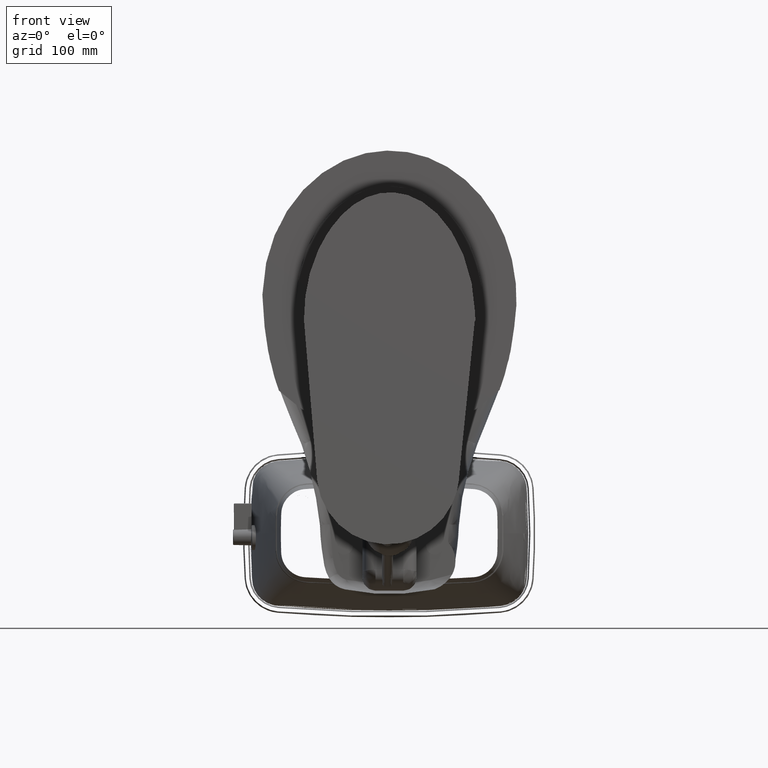
[diagram: clean part render]
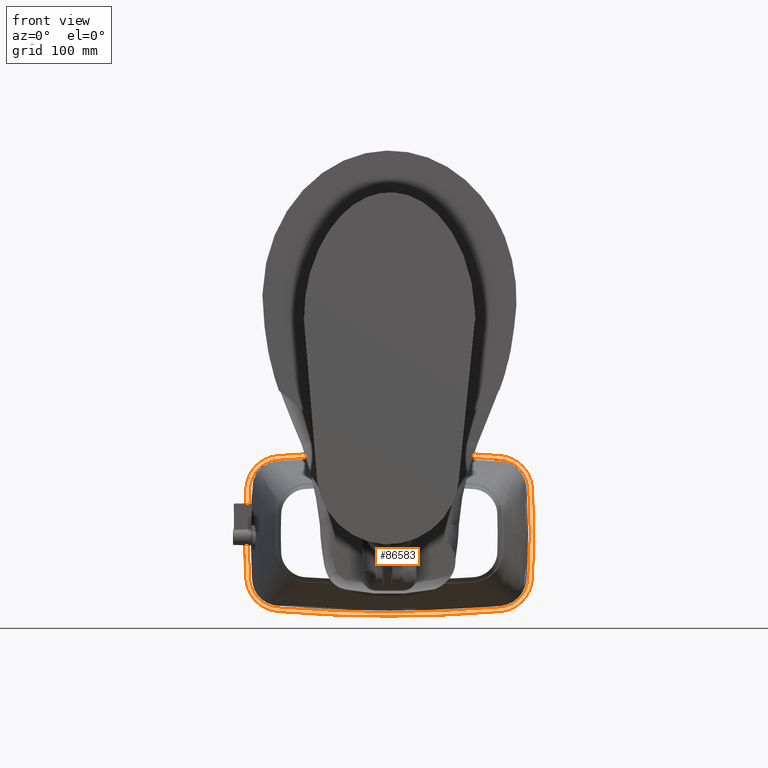
[diagram: same view with one face highlighted and labeled with its STEP entity id]
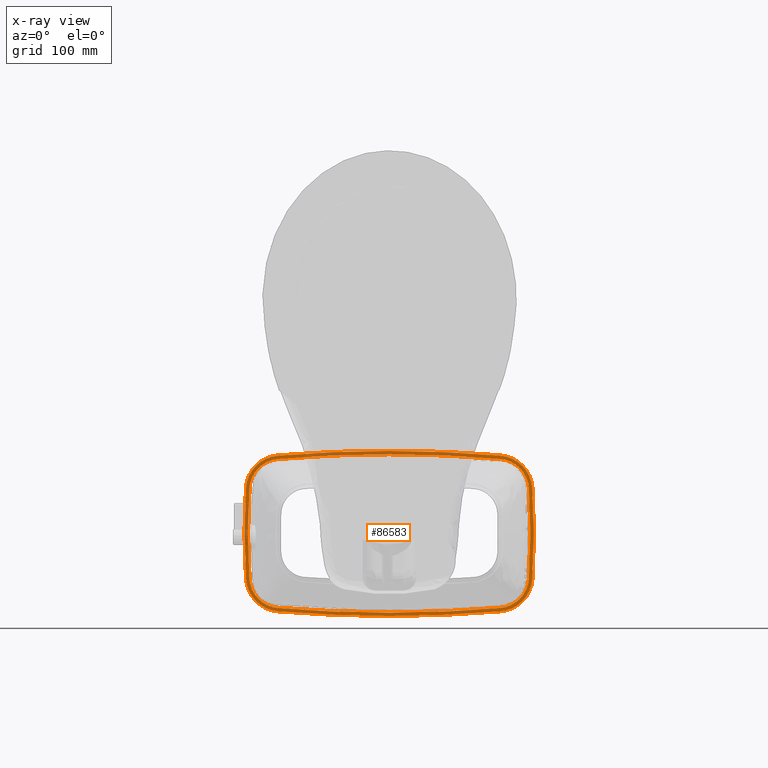
[diagram: x-ray of the same camera — body ghosted, the highlighted face saturated]
A machine part, front view. The second image highlights one B-rep face of the part: STEP entity #86583.
The next image is the same camera in x-ray: the body ghosted, the highlighted face saturated — about 26% of this face is hidden behind the body in this view.
In plain terms, the highlighted planar face has unit normal (0, 1, 0.0002).
Its self-contained STEP definition (entity closure, byte-faithful):
#176 = VERTEX_POINT ( 'NONE', #129583 ) ;
#303 = CARTESIAN_POINT ( 'NONE',  ( -8.394900699338583300, 5.722017461368111000, 26.92388689197058600 ) ) ;
#364 = CARTESIAN_POINT ( 'NONE',  ( -6.975906642524934800, 4.117774584156561200, 26.92350851978663700 ) ) ;
#490 = CARTESIAN_POINT ( 'NONE',  ( -8.472611875314960600, 5.319689931809843000, 26.92379211666284900 ) ) ;
#806 = CARTESIAN_POINT ( 'NONE',  ( 7.616113879489370600, 4.633578887697243700, 26.92362613171425100 ) ) ;
#1069 = CARTESIAN_POINT ( 'NONE',  ( -7.217001944073494700, 4.182173898807480600, 26.92352375831222800 ) ) ;
#1639 = B_SPLINE_CURVE_WITH_KNOTS ( 'NONE', 3,
 ( #7081, #38155, #7756, #100498 ),
 .UNSPECIFIED., .F., .F.,
 ( 4, 4 ),
 ( 0.0000000000000000000, 1.000000000000000000 ),
 .UNSPECIFIED. ) ;
#1718 = ORIENTED_EDGE ( 'NONE', *, *, #163447, .T. ) ;
#1816 = VERTEX_POINT ( 'NONE', #130914 ) ;
#1974 = CARTESIAN_POINT ( 'NONE',  ( 6.942126193189907600, 13.45194952477926300, 26.92570409251730000 ) ) ;
#2101 = CARTESIAN_POINT ( 'NONE',  ( 3.342163839944178000, 13.69427977312047200, 26.92576215772657700 ) ) ;
#2254 = CARTESIAN_POINT ( 'NONE',  ( -2.251002206331928200, 4.034730061868407000, 26.92348768306526800 ) ) ;
#2497 = CARTESIAN_POINT ( 'NONE',  ( -7.558017041292656800, 13.00115540686403800, 26.92560177356210000 ) ) ;
#2774 = CARTESIAN_POINT ( 'NONE',  ( 1.103284049166230400, 13.76451948890556800, 26.92577930926817900 ) ) ;
#2980 = B_SPLINE_CURVE_WITH_KNOTS ( 'NONE', 3,
 ( #182817, #136755, #58935, #180168 ),
 .UNSPECIFIED., .F., .F.,
 ( 4, 4 ),
 ( 0.0000000000000000000, 1.000000000000000000 ),
 .UNSPECIFIED. ) ;
#3302 = B_SPLINE_CURVE_WITH_KNOTS ( 'NONE', 3,
 ( #23556, #6648, #146754, #178621 ),
 .UNSPECIFIED., .F., .F.,
 ( 4, 4 ),
 ( 0.0000000000000000000, 1.000000000000000000 ),
 .UNSPECIFIED. ) ;
#3363 = CARTESIAN_POINT ( 'NONE',  ( -8.290095402090552000, 4.994566325283071400, 26.92371546216516600 ) ) ;
#3400 = CARTESIAN_POINT ( 'NONE',  ( -4.483649194428347900, 13.44158137832703500, 26.92570472025345300 ) ) ;
#3942 = CARTESIAN_POINT ( 'NONE',  ( -8.421410476993440100, 12.36381892882126400, 26.92545183672621100 ) ) ;
#3946 = B_SPLINE_CURVE_WITH_KNOTS ( 'NONE', 3,
 ( #160282, #143334, #159603, #82404 ),
 .UNSPECIFIED., .F., .F.,
 ( 4, 4 ),
 ( 0.0000000000000000000, 1.000000000000000000 ),
 .UNSPECIFIED. ) ;
#4246 = CARTESIAN_POINT ( 'NONE',  ( -8.119960694803149100, 12.45870525619960700, 26.92547411277627500 ) ) ;
#4269 = CARTESIAN_POINT ( 'NONE',  ( -7.096454298893703200, 13.41974987036496000, 26.92570027851594400 ) ) ;
#4729 = B_SPLINE_CURVE_WITH_KNOTS ( 'NONE', 3,
 ( #115005, #39073, #176580, #145390 ),
 .UNSPECIFIED., .F., .F.,
 ( 4, 4 ),
 ( 0.0000000000000000000, 1.000000000000000000 ),
 .UNSPECIFIED. ) ;
#5049 = CARTESIAN_POINT ( 'NONE',  ( 8.530793323624678200, 12.01883995033031400, 26.92536599706901900 ) ) ;
#5267 = VERTEX_POINT ( 'NONE', #57300 ) ;
#5823 = B_SPLINE_CURVE_WITH_KNOTS ( 'NONE', 3,
 ( #87892, #43160, #133944, #181978 ),
 .UNSPECIFIED., .F., .F.,
 ( 4, 4 ),
 ( 0.0000000000000000000, 1.000000000000000000 ),
 .UNSPECIFIED. ) ;
#5943 = CARTESIAN_POINT ( 'NONE',  ( 5.579086154389861100, 13.57725450013438400, 26.92573398312363500 ) ) ;
#6015 = CARTESIAN_POINT ( 'NONE',  ( 4.449868745094566900, 4.128142730608660200, 26.92350789205048400 ) ) ;
#6113 = CARTESIAN_POINT ( 'NONE',  ( 3.342163839633308900, 3.875444336028111000, 26.92344864908818600 ) ) ;
#6514 = VERTEX_POINT ( 'NONE', #47603 ) ;
#6648 = CARTESIAN_POINT ( 'NONE',  ( 8.506595069912899400, 7.873592885092432600, 26.92438930272471300 ) ) ;
#6947 = ORIENTED_EDGE ( 'NONE', *, *, #141471, .T. ) ;
#7081 = CARTESIAN_POINT ( 'NONE',  ( 8.250817403258663400, 12.16543075248543500, 26.92540061195712300 ) ) ;
#7756 = CARTESIAN_POINT ( 'NONE',  ( 8.333770719919032300, 11.95688432109868600, 26.92535145206728600 ) ) ;
#7782 = CARTESIAN_POINT ( 'NONE',  ( -8.290095401850395600, 12.57515778312874300, 26.92550159698065900 ) ) ;
#7820 = B_SPLINE_CURVE_WITH_KNOTS ( 'NONE', 3,
 ( #35430, #82184, #143776, #127602 ),
 .UNSPECIFIED., .F., .F.,
 ( 4, 4 ),
 ( 0.0000000000000000000, 1.000000000000000000 ),
 .UNSPECIFIED. ) ;
#7998 = CARTESIAN_POINT ( 'NONE',  ( 7.735200183084645100, 13.10444692180984000, 26.92562200100558900 ) ) ;
#8021 = CARTESIAN_POINT ( 'NONE',  ( 3.342163839633308900, 3.875444336028111000, 26.92344864908818600 ) ) ;
#8705 = CARTESIAN_POINT ( 'NONE',  ( -7.768980632417323800, 4.465277187125984400, 26.92359061129834800 ) ) ;
#8954 = CARTESIAN_POINT ( 'NONE',  ( 3.333545251192639600, 13.48828771619803200, 26.92571362430697200 ) ) ;
#9207 = CARTESIAN_POINT ( 'NONE',  ( -8.540375519275590600, 8.784862054198031300, 26.92460859683560400 ) ) ;
#9236 = VERTEX_POINT ( 'NONE', #177914 ) ;
#9288 = CARTESIAN_POINT ( 'NONE',  ( 7.524236591960239200, 4.568568702071522700, 26.92361083874183700 ) ) ;
#9806 = CARTESIAN_POINT ( 'NONE',  ( 8.086180245468112200, 5.111018852735826500, 26.92373849952766200 ) ) ;
#9871 = FACE_OUTER_BOUND ( 'NONE', #43476, .T. ) ;
#9928 = CARTESIAN_POINT ( 'NONE',  ( 8.204631702180970300, 12.26806915561851100, 26.92542480797395400 ) ) ;
#9947 = VERTEX_POINT ( 'NONE', #198375 ) ;
#10031 = EDGE_CURVE ( 'NONE', #190002, #90811, #2980, .T. ) ;
#10352 = VERTEX_POINT ( 'NONE', #93346 ) ;
#10474 = CARTESIAN_POINT ( 'NONE',  ( -8.140611365964566900, 12.77406050089606800, 26.92554842215651300 ) ) ;
#10887 = CARTESIAN_POINT ( 'NONE',  ( -0.01689022451657478200, 13.55834721244882100, 26.92573103211554700 ) ) ;
#11204 = CARTESIAN_POINT ( 'NONE',  ( -8.447407488031498000, 6.054219750379133700, 26.92396517940351300 ) ) ;
#11252 = CARTESIAN_POINT ( 'NONE',  ( 8.438831425762995100, 5.319689932345277800, 26.92378757171848800 ) ) ;
#11308 = EDGE_CURVE ( 'NONE', #72888, #56190, #119783, .T. ) ;
#11355 = VERTEX_POINT ( 'NONE', #8705 ) ;
#11765 = CARTESIAN_POINT ( 'NONE',  ( -7.359217637066929100, 4.464397345887401300, 26.92359029386697200 ) ) ;
#11782 = CARTESIAN_POINT ( 'NONE',  ( 7.183221494738978300, 13.38755021012834600, 26.92568885399170900 ) ) ;
#11841 = CARTESIAN_POINT ( 'NONE',  ( 6.900729439175073300, 13.24960646001075800, 26.92565642768035500 ) ) ;
#12012 = VERTEX_POINT ( 'NONE', #175728 ) ;
#12083 = B_SPLINE_CURVE_WITH_KNOTS ( 'NONE', 3,
 ( #139202, #169017, #1069, #155425 ),
 .UNSPECIFIED., .F., .F.,
 ( 4, 4 ),
 ( 0.0000000000000000000, 1.000000000000000000 ),
 .UNSPECIFIED. ) ;
#12118 = CARTESIAN_POINT ( 'NONE',  ( 8.022607841740155600, 12.55158318973110800, 26.92549165831454500 ) ) ;
#12529 = AXIS2_PLACEMENT_3D ( 'NONE', #175596, #49704, #65292 ) ;
#12919 = B_SPLINE_CURVE_WITH_KNOTS ( 'NONE', 3,
 ( #96472, #5049, #144482, #145808 ),
 .UNSPECIFIED., .F., .F.,
 ( 4, 4 ),
 ( 0.0000000000000000000, 1.000000000000000000 ),
 .UNSPECIFIED. ) ;
#13749 = CARTESIAN_POINT ( 'NONE',  ( 7.299982374304331500, 13.34496734894527800, 26.92567878926179100 ) ) ;
#14138 = CARTESIAN_POINT ( 'NONE',  ( 6.790281142350401000, 4.300894111788060100, 26.92354796665146900 ) ) ;
#14235 = CARTESIAN_POINT ( 'NONE',  ( 8.619321903153547700, 11.52952687890196900, 26.92525068159857700 ) ) ;
#14524 = CARTESIAN_POINT ( 'NONE',  ( 8.405972031032153100, 5.941929231769418800, 26.92393419223303000 ) ) ;
#14528 = VERTEX_POINT ( 'NONE', #184872 ) ;
#14927 = ORIENTED_EDGE ( 'NONE', *, *, #72201, .T. ) ;
#15640 = CARTESIAN_POINT ( 'NONE',  ( -8.394900699338583300, 5.722017461368111000, 26.92388689197058600 ) ) ;
#15719 = B_SPLINE_CURVE_WITH_KNOTS ( 'NONE', 3,
 ( #101683, #42078, #180912, #88151 ),
 .UNSPECIFIED., .F., .F.,
 ( 4, 4 ),
 ( 0.0000000000000000000, 1.000000000000000000 ),
 .UNSPECIFIED. ) ;
#15931 = EDGE_CURVE ( 'NONE', #52964, #47439, #78609, .T. ) ;
#15966 = EDGE_CURVE ( 'NONE', #137290, #102513, #163070, .T. ) ;
#16170 = CARTESIAN_POINT ( 'NONE',  ( 8.019291632371262000, 4.706751149047637000, 26.92364326416858900 ) ) ;
#16192 = CARTESIAN_POINT ( 'NONE',  ( 7.062673849853941200, 13.41974987081338500, 26.92569647325529700 ) ) ;
#16243 = EDGE_CURVE ( 'NONE', #173792, #17776, #165596, .T. ) ;
#16454 = ORIENTED_EDGE ( 'NONE', *, *, #157738, .T. ) ;
#16547 = CARTESIAN_POINT ( 'NONE',  ( 2.217221756990252100, 13.53499404706729000, 26.92572492923866900 ) ) ;
#16680 = CARTESIAN_POINT ( 'NONE',  ( -8.284597852377952900, 12.16543075196181300, 26.92540505584408100 ) ) ;
#16845 = VERTEX_POINT ( 'NONE', #65172 ) ;
#17137 = CARTESIAN_POINT ( 'NONE',  ( -8.056388290834647100, 12.55158318922191500, 26.92549597953902600 ) ) ;
#17310 = CARTESIAN_POINT ( 'NONE',  ( 8.256314952518504700, 4.994566325806693500, 26.92371101532327800 ) ) ;
#17411 = CARTESIAN_POINT ( 'NONE',  ( 8.610835577361157800, 11.65401195854974100, 26.92528001498569200 ) ) ;
#17586 = CARTESIAN_POINT ( 'NONE',  ( -8.219619139591865000, 4.891601999773359700, 26.92369118282660200 ) ) ;
#17674 = CARTESIAN_POINT ( 'NONE',  ( 2.222968737317649900, 13.74110625032236600, 26.92577349173883400 ) ) ;
#17776 = VERTEX_POINT ( 'NONE', #102255 ) ;
#17788 = EDGE_CURVE ( 'NONE', #55345, #16845, #185264, .T. ) ;
#17975 = CARTESIAN_POINT ( 'NONE',  ( 7.633345167362722200, 4.393206998936085100, 26.92356949079031000 ) ) ;
#18314 = ORIENTED_EDGE ( 'NONE', *, *, #156835, .T. ) ;
#19144 = ORIENTED_EDGE ( 'NONE', *, *, #187537, .T. ) ;
#19307 = CARTESIAN_POINT ( 'NONE',  ( -7.906156174484252100, 12.71832605430590500, 26.92553522702692300 ) ) ;
#19758 = FACE_BOUND ( 'NONE', #126035, .T. ) ;
#20425 = EDGE_CURVE ( 'NONE', #78236, #148187, #7820, .T. ) ;
#20870 = CARTESIAN_POINT ( 'NONE',  ( 8.019291632629528300, 12.86297296039685100, 26.92556502869332400 ) ) ;
#21303 = B_SPLINE_CURVE_WITH_KNOTS ( 'NONE', 3,
 ( #153613, #151649, #14138, #152954 ),
 .UNSPECIFIED., .F., .F.,
 ( 4, 4 ),
 ( 0.0000000000000000000, 1.000000000000000000 ),
 .UNSPECIFIED. ) ;
#21529 = CARTESIAN_POINT ( 'NONE',  ( 7.837055186749216400, 13.03237673985445800, 26.92560499249521700 ) ) ;
#21562 = CARTESIAN_POINT ( 'NONE',  ( 3.333545250894804900, 4.081436392949606300, 26.92349718714028100 ) ) ;
#22637 = CARTESIAN_POINT ( 'NONE',  ( -3.367325700229923100, 13.48828771598582900, 26.92571542516365200 ) ) ;
#22767 = CARTESIAN_POINT ( 'NONE',  ( -8.715399314480423600, 6.954025017332576800, 26.92417726305135900 ) ) ;
#22834 = ORIENTED_EDGE ( 'NONE', *, *, #151367, .T. ) ;
#23086 = VERTEX_POINT ( 'NONE', #130088 ) ;
#23556 = CARTESIAN_POINT ( 'NONE',  ( 8.506595069941731400, 8.784862054737795100, 26.92460401546833300 ) ) ;
#23861 = EDGE_CURVE ( 'NONE', #107735, #190121, #21303, .T. ) ;
#25463 = CARTESIAN_POINT ( 'NONE',  ( 8.250817403258663400, 12.16543075248543500, 26.92540061195712300 ) ) ;
#25779 = VERTEX_POINT ( 'NONE', #41757 ) ;
#25966 = ORIENTED_EDGE ( 'NONE', *, *, #15931, .T. ) ;
#26007 = ORIENTED_EDGE ( 'NONE', *, *, #176791, .T. ) ;
#26008 = CARTESIAN_POINT ( 'NONE',  ( -8.219619139346455900, 12.67812210864292100, 26.92552583843827900 ) ) ;
#26406 = VERTEX_POINT ( 'NONE', #126264 ) ;
#26888 = CARTESIAN_POINT ( 'NONE',  ( 8.361120250006694100, 11.84770664756771900, 26.92532572033334800 ) ) ;
#26983 = CARTESIAN_POINT ( 'NONE',  ( 8.530793323419953100, 5.550884159146591800, 26.92384202086109500 ) ) ;
#27342 = CARTESIAN_POINT ( 'NONE',  ( 8.086180245468112200, 5.111018852735826500, 26.92373849952766200 ) ) ;
#27875 = VERTEX_POINT ( 'NONE', #124537 ) ;
#28110 = EDGE_CURVE ( 'NONE', #109682, #138850, #87491, .T. ) ;
#28283 = CARTESIAN_POINT ( 'NONE',  ( 7.525930602795930300, 13.23903523230223200, 26.92565376887086600 ) ) ;
#28335 = CARTESIAN_POINT ( 'NONE',  ( 8.086180245700788300, 12.45870525671299400, 26.92546975738167300 ) ) ;
#29164 = VERTEX_POINT ( 'NONE', #106693 ) ;
#29431 = CARTESIAN_POINT ( 'NONE',  ( -8.367551169251967700, 5.612839787837135200, 26.92386116023665100 ) ) ;
#29565 = CARTESIAN_POINT ( 'NONE',  ( 8.681618865031389000, 6.954025017883982900, 26.92417258760891800 ) ) ;
#29638 = B_SPLINE_CURVE_WITH_KNOTS ( 'NONE', 3,
 ( #63882, #183705, #59181, #74712 ),
 .UNSPECIFIED., .F., .F.,
 ( 4, 4 ),
 ( 0.0000000000000000000, 1.000000000000000000 ),
 .UNSPECIFIED. ) ;
#29755 = EDGE_CURVE ( 'NONE', #176, #1816, #42767, .T. ) ;
#29923 = EDGE_CURVE ( 'NONE', #191544, #78236, #12919, .T. ) ;
#30160 = CARTESIAN_POINT ( 'NONE',  ( 8.619321902979530500, 6.040197230580710100, 26.92395728874749100 ) ) ;
#30287 = CARTESIAN_POINT ( 'NONE',  ( 7.062673849560632700, 4.149974238570472100, 26.92351233378799300 ) ) ;
#30880 = CARTESIAN_POINT ( 'NONE',  ( 8.019291632371262000, 4.706751149047637000, 26.92364326416858900 ) ) ;
#30903 = CARTESIAN_POINT ( 'NONE',  ( -8.284597852590552600, 5.404293356450392800, 26.92381200034681000 ) ) ;
#30917 = B_SPLINE_CURVE_WITH_KNOTS ( 'NONE', 3,
 ( #120134, #133015, #166145, #119476 ),
 .UNSPECIFIED., .F., .F.,
 ( 4, 4 ),
 ( 0.0000000000000000000, 1.000000000000000000 ),
 .UNSPECIFIED. ) ;
#30982 = CARTESIAN_POINT ( 'NONE',  ( 7.009468241372440300, 13.22056108235275800, 26.92564955480083100 ) ) ;
#31531 = CARTESIAN_POINT ( 'NONE',  ( -8.238412151293964300, 12.26806915509802900, 26.92542922703613300 ) ) ;
#32013 = CARTESIAN_POINT ( 'NONE',  ( -3.367325700527951300, 4.081436392737401800, 26.92349898799696500 ) ) ;
#32289 = EDGE_CURVE ( 'NONE', #61143, #43829, #73936, .T. ) ;
#32398 = CARTESIAN_POINT ( 'NONE',  ( -7.649894329086613700, 4.633578887213779800, 26.92363023444852000 ) ) ;
#32646 = VERTEX_POINT ( 'NONE', #39453 ) ;
#32958 = CARTESIAN_POINT ( 'NONE',  ( 3.333545250894804900, 4.081436392949606300, 26.92349718714028100 ) ) ;
#33382 = CARTESIAN_POINT ( 'NONE',  ( -3.375944289279526600, 3.875444335815392700, 26.92345045457736000 ) ) ;
#33413 = EDGE_CURVE ( 'NONE', #174184, #198540, #70282, .T. ) ;
#34176 = CARTESIAN_POINT ( 'NONE',  ( 8.413627038697638800, 11.51550435855630100, 26.92524743290042000 ) ) ;
#34489 = CARTESIAN_POINT ( 'NONE',  ( -3.367325700229923100, 13.48828771598582900, 26.92571542516365200 ) ) ;
#35430 = CARTESIAN_POINT ( 'NONE',  ( 8.438831425982288100, 12.25003417712598600, 26.92542049564108800 ) ) ;
#35543 = EDGE_CURVE ( 'NONE', #189643, #148382, #40445, .T. ) ;
#35703 = CARTESIAN_POINT ( 'NONE',  ( 6.695345475405907200, 13.48368340592519700, 26.92571163595926000 ) ) ;
#36035 = ORIENTED_EDGE ( 'NONE', *, *, #69102, .T. ) ;
#36215 = CARTESIAN_POINT ( 'NONE',  ( 8.712767346129769700, 9.700810816883974400, 26.92481977540625200 ) ) ;
#36640 = CARTESIAN_POINT ( 'NONE',  ( -3.375944288968504700, 13.69427977290787600, 26.92576396321574700 ) ) ;
#37324 = CARTESIAN_POINT ( 'NONE',  ( 8.413627038697638800, 11.51550435855630100, 26.92524743290042000 ) ) ;
#37522 = CARTESIAN_POINT ( 'NONE',  ( -7.965532785667987200, 12.95188541888031100, 26.92559027411417500 ) ) ;
#37886 = ORIENTED_EDGE ( 'NONE', *, *, #140989, .T. ) ;
#38071 = CARTESIAN_POINT ( 'NONE',  ( -3.375944288968504700, 13.69427977290787600, 26.92576396321574700 ) ) ;
#38155 = CARTESIAN_POINT ( 'NONE',  ( 8.297003104336356600, 12.06279235607126000, 26.92537641594187300 ) ) ;
#39073 = CARTESIAN_POINT ( 'NONE',  ( -6.824061591967194800, 4.300894111356956100, 26.92355162550122900 ) ) ;
#39308 = VERTEX_POINT ( 'NONE', #110487 ) ;
#39453 = CARTESIAN_POINT ( 'NONE',  ( 8.361120250006694100, 11.84770664756771900, 26.92532572033334800 ) ) ;
#39603 = CARTESIAN_POINT ( 'NONE',  ( -0.01689022451007844700, 13.76451948887007900, 26.92577961031461300 ) ) ;
#39784 = VERTEX_POINT ( 'NONE', #52220 ) ;
#40445 = B_SPLINE_CURVE_WITH_KNOTS ( 'NONE', 3,
 ( #165143, #196947, #131976, #87275 ),
 .UNSPECIFIED., .F., .F.,
 ( 4, 4 ),
 ( 0.0000000000000000000, 1.000000000000000000 ),
 .UNSPECIFIED. ) ;
#40609 = CARTESIAN_POINT ( 'NONE',  ( -8.472611875314960600, 5.319689931809843000, 26.92379211666284900 ) ) ;
#41757 = CARTESIAN_POINT ( 'NONE',  ( -8.119960694803149100, 12.45870525619960700, 26.92547411277627500 ) ) ;
#42065 = ORIENTED_EDGE ( 'NONE', *, *, #107020, .T. ) ;
#42078 = CARTESIAN_POINT ( 'NONE',  ( 7.793411782238973900, 4.771195462300390500, 26.92365850920758400 ) ) ;
#42266 = CARTESIAN_POINT ( 'NONE',  ( 7.412956488550001700, 13.29200128726417600, 26.92566627906553500 ) ) ;
#42710 = EDGE_CURVE ( 'NONE', #6514, #191544, #171791, .T. ) ;
#42767 = B_SPLINE_CURVE_WITH_KNOTS ( 'NONE', 3,
 ( #156738, #49115, #95810, #191243 ),
 .UNSPECIFIED., .F., .F.,
 ( 4, 4 ),
 ( 0.0000000000000000000, 1.000000000000000000 ),
 .UNSPECIFIED. ) ;
#43041 = B_SPLINE_CURVE_WITH_KNOTS ( 'NONE', 3,
 ( #109775, #123355, #187636, #48144 ),
 .UNSPECIFIED., .F., .F.,
 ( 4, 4 ),
 ( 0.0000000000000000000, 1.000000000000000000 ),
 .UNSPECIFIED. ) ;
#43160 = CARTESIAN_POINT ( 'NONE',  ( -8.540375519246758500, 9.696131223843426700, 26.92482330957922400 ) ) ;
#43166 = CARTESIAN_POINT ( 'NONE',  ( 7.118207043569557700, 13.19151570469475100, 26.92564268192131000 ) ) ;
#43346 = CARTESIAN_POINT ( 'NONE',  ( -0.01689022451007844700, 13.76451948887007900, 26.92577961031461300 ) ) ;
#43476 = EDGE_LOOP ( 'NONE', ( #180994, #88600, #188930, #50612, #173781, #80382, #65963, #16454, #193281, #54392, #170426, #57522, #106137, #155956, #178750, #36035, #159083, #42065, #104462, #157219, #68540, #73271, #136153, #14927, #156932, #26007, #156926, #193781, #157269, #171775, #192302, #1718, #78303, #138968, #89479, #103733, #130644, #193838, #66263, #70980, #96103, #82265, #44486, #156127 ) ) ;
#43719 = EDGE_CURVE ( 'NONE', #14528, #39784, #84924, .T. ) ;
#43827 = CARTESIAN_POINT ( 'NONE',  ( 7.223530025689376200, 13.15310426492651000, 26.92563360313335300 ) ) ;
#43829 = VERTEX_POINT ( 'NONE', #181834 ) ;
#44000 = ORIENTED_EDGE ( 'NONE', *, *, #125160, .T. ) ;
#44452 = VERTEX_POINT ( 'NONE', #47913 ) ;
#44486 = ORIENTED_EDGE ( 'NONE', *, *, #176411, .T. ) ;
#44523 = B_SPLINE_CURVE_WITH_KNOTS ( 'NONE', 3,
 ( #88991, #133713, #104515, #11765 ),
 .UNSPECIFIED., .F., .F.,
 ( 4, 4 ),
 ( 0.0000000000000000000, 1.000000000000000000 ),
 .UNSPECIFIED. ) ;
#44992 = CARTESIAN_POINT ( 'NONE',  ( 7.872375725150788200, 4.851398054629528100, 26.92367738527701300 ) ) ;
#45005 = CARTESIAN_POINT ( 'NONE',  ( 7.062673849560632700, 4.149974238570472100, 26.92351233378799300 ) ) ;
#45212 = CARTESIAN_POINT ( 'NONE',  ( 8.438831425762995100, 5.319689932345277800, 26.92378757171848800 ) ) ;
#45381 = VERTEX_POINT ( 'NONE', #51952 ) ;
#45623 = CARTESIAN_POINT ( 'NONE',  ( -7.741771616611544000, 4.698589072833725000, 26.92364557680490800 ) ) ;
#46756 = EDGE_CURVE ( 'NONE', #136308, #44452, #82383, .T. ) ;
#46865 = EDGE_CURVE ( 'NONE', #29164, #104783, #71203, .T. ) ;
#46946 = CARTESIAN_POINT ( 'NONE',  ( -7.649894329086613700, 4.633578887213779800, 26.92363023444852000 ) ) ;
#47094 = CARTESIAN_POINT ( 'NONE',  ( -8.447407487858269400, 11.51550435802283300, 26.92525196429744800 ) ) ;
#47112 = CARTESIAN_POINT ( 'NONE',  ( 8.561112959763782700, 5.671918335899605700, 26.92387053071927000 ) ) ;
#47168 = CARTESIAN_POINT ( 'NONE',  ( -8.746547795433070100, 8.784862054191338000, 26.92460865224433100 ) ) ;
#47258 = ORIENTED_EDGE ( 'NONE', *, *, #169174, .T. ) ;
#47439 = VERTEX_POINT ( 'NONE', #27342 ) ;
#47456 = CARTESIAN_POINT ( 'NONE',  ( 3.342163839944178000, 13.69427977312047200, 26.92576215772657700 ) ) ;
#47539 = ORIENTED_EDGE ( 'NONE', *, *, #139778, .T. ) ;
#47603 = CARTESIAN_POINT ( 'NONE',  ( 8.619321903153547700, 11.52952687890196900, 26.92525068159857700 ) ) ;
#47693 = CARTESIAN_POINT ( 'NONE',  ( -8.284597852590552600, 5.404293356450392800, 26.92381200034681000 ) ) ;
#47767 = CARTESIAN_POINT ( 'NONE',  ( -8.439752480364832700, 11.62779487716639600, 26.92527842007090700 ) ) ;
#47805 = CARTESIAN_POINT ( 'NONE',  ( -8.594893409098427000, 11.89780577303582700, 26.92534208158466700 ) ) ;
#47913 = CARTESIAN_POINT ( 'NONE',  ( -7.096454298893703200, 13.41974987036496000, 26.92570027851594400 ) ) ;
#48144 = CARTESIAN_POINT ( 'NONE',  ( -0.01689022482539489700, 3.805204620065747900, 26.92343300198932400 ) ) ;
#48587 = CARTESIAN_POINT ( 'NONE',  ( 1.100409931456227900, 4.011376896522407700, 26.92348127991437000 ) ) ;
#49115 = CARTESIAN_POINT ( 'NONE',  ( -6.934509888225722600, 13.24960645957270300, 26.92566014589598900 ) ) ;
#49178 = CARTESIAN_POINT ( 'NONE',  ( -8.472611875098428100, 12.25003417659055300, 26.92542504058544500 ) ) ;
#49205 = CARTESIAN_POINT ( 'NONE',  ( -8.119960694803149100, 12.45870525619960700, 26.92547411277627500 ) ) ;
#49256 = ORIENTED_EDGE ( 'NONE', *, *, #29755, .T. ) ;
#49365 = CARTESIAN_POINT ( 'NONE',  ( 7.299982374015486100, 4.224756760453674400, 26.92352989022834100 ) ) ;
#49417 = VERTEX_POINT ( 'NONE', #16170 ) ;
#49429 = VERTEX_POINT ( 'NONE', #187485 ) ;
#49704 = DIRECTION ( 'NONE',  ( 2.687496437972460400E-007, -0.0002356194468264426600, 0.9999999722417016700 ) ) ;
#50076 = CARTESIAN_POINT ( 'NONE',  ( 8.185838690012204200, 4.891602000292779800, 26.92368677386565800 ) ) ;
#50079 = ORIENTED_EDGE ( 'NONE', *, *, #141980, .T. ) ;
#50153 = ORIENTED_EDGE ( 'NONE', *, *, #174109, .T. ) ;
#50612 = ORIENTED_EDGE ( 'NONE', *, *, #29923, .T. ) ;
#50994 = CARTESIAN_POINT ( 'NONE',  ( -7.217001943780832800, 13.38755020967231100, 26.92569272404663000 ) ) ;
#51017 = CARTESIAN_POINT ( 'NONE',  ( 7.524236592227027600, 13.00115540734160500, 26.92559772021180500 ) ) ;
#51131 = EDGE_CURVE ( 'NONE', #84678, #62287, #138095, .T. ) ;
#51376 = CARTESIAN_POINT ( 'NONE',  ( 7.931752336597510200, 12.95188541938346000, 26.92558600172446100 ) ) ;
#51706 = PLANE ( 'NONE',  #12529 ) ;
#51952 = CARTESIAN_POINT ( 'NONE',  ( 8.619321902979530500, 6.040197230580710100, 26.92395728874749100 ) ) ;
#52220 = CARTESIAN_POINT ( 'NONE',  ( -8.540375519275590600, 8.784862054198031300, 26.92460859683560400 ) ) ;
#52227 = CARTESIAN_POINT ( 'NONE',  ( -7.359217636791338000, 13.10532676258307200, 26.92562626493271700 ) ) ;
#52294 = CARTESIAN_POINT ( 'NONE',  ( -5.612866603419912600, 13.57725449977979100, 26.92573699095695300 ) ) ;
#52663 = CARTESIAN_POINT ( 'NONE',  ( -8.439752480545932300, 5.941929231236089000, 26.92393871951549400 ) ) ;
#52843 = CARTESIAN_POINT ( 'NONE',  ( 6.695345475108267100, 4.086040703435826600, 26.92349736852276700 ) ) ;
#52964 = VERTEX_POINT ( 'NONE', #176104 ) ;
#53328 = CARTESIAN_POINT ( 'NONE',  ( -7.558017041561678100, 4.568568701594093900, 26.92361489209213200 ) ) ;
#53419 = CARTESIAN_POINT ( 'NONE',  ( 5.564728111951418500, 4.198161404393044200, 26.92352409019406100 ) ) ;
#53477 = B_SPLINE_CURVE_WITH_KNOTS ( 'NONE', 3,
 ( #84536, #53419, #6015, #21562 ),
 .UNSPECIFIED., .F., .F.,
 ( 4, 4 ),
 ( 0.0000000000000000000, 1.000000000000000000 ),
 .UNSPECIFIED. ) ;
#54392 = ORIENTED_EDGE ( 'NONE', *, *, #149783, .T. ) ;
#54807 = EDGE_CURVE ( 'NONE', #9236, #6514, #150477, .T. ) ;
#55345 = VERTEX_POINT ( 'NONE', #84994 ) ;
#55868 = CARTESIAN_POINT ( 'NONE',  ( -8.053072081704726800, 12.86297295988819100, 26.92556934813534400 ) ) ;
#56028 = CARTESIAN_POINT ( 'NONE',  ( 7.427344361283204900, 4.512174854956562300, 26.92359757729416400 ) ) ;
#56032 = CARTESIAN_POINT ( 'NONE',  ( -7.649894329086613700, 4.633578887213779800, 26.92363023444852000 ) ) ;
#56178 = CARTESIAN_POINT ( 'NONE',  ( -0.01689022482539489700, 3.805204620065747900, 26.92343300198932400 ) ) ;
#56190 = VERTEX_POINT ( 'NONE', #69979 ) ;
#56587 = VERTEX_POINT ( 'NONE', #75930 ) ;
#56889 = CARTESIAN_POINT ( 'NONE',  ( 7.793411782493054200, 12.79852864712991500, 26.92554990506458900 ) ) ;
#57300 = CARTESIAN_POINT ( 'NONE',  ( -8.053072081964566900, 4.706751148538582000, 26.92364758361061300 ) ) ;
#57335 = B_SPLINE_CURVE_WITH_KNOTS ( 'NONE', 3,
 ( #4246, #17137, #164086, #84859 ),
 .UNSPECIFIED., .F., .F.,
 ( 4, 4 ),
 ( 0.0000000000000000000, 1.000000000000000000 ),
 .UNSPECIFIED. ) ;
#57522 = ORIENTED_EDGE ( 'NONE', *, *, #62731, .T. ) ;
#58209 = CARTESIAN_POINT ( 'NONE',  ( 7.616113879751966700, 12.93614522172165400, 26.92558237785541700 ) ) ;
#58529 = CARTESIAN_POINT ( 'NONE',  ( -8.625213045631234400, 5.792952518827032500, 26.92390366754641200 ) ) ;
#58669 = VERTEX_POINT ( 'NONE', #186520 ) ;
#58786 = EDGE_CURVE ( 'NONE', #9947, #136442, #68382, .T. ) ;
#58879 = EDGE_CURVE ( 'NONE', #164046, #189643, #176396, .T. ) ;
#58935 = CARTESIAN_POINT ( 'NONE',  ( -8.056388291074808800, 5.018140919204467900, 26.92372095398939200 ) ) ;
#59181 = CARTESIAN_POINT ( 'NONE',  ( -7.870835636083989500, 4.537347369081102100, 26.92360761980872000 ) ) ;
#59733 = VERTEX_POINT ( 'NONE', #52227 ) ;
#60890 = ORIENTED_EDGE ( 'NONE', *, *, #166871, .T. ) ;
#61143 = VERTEX_POINT ( 'NONE', #30982 ) ;
#61211 = CARTESIAN_POINT ( 'NONE',  ( -7.906156174732283000, 4.851398054129921500, 26.92368162575184300 ) ) ;
#61623 = CARTESIAN_POINT ( 'NONE',  ( 3.333545250894804900, 4.081436392949606300, 26.92349718714028100 ) ) ;
#61895 = CARTESIAN_POINT ( 'NONE',  ( -8.746547795404090700, 9.700810816334412200, 26.92482446759097700 ) ) ;
#62287 = VERTEX_POINT ( 'NONE', #109091 ) ;
#62384 = CARTESIAN_POINT ( 'NONE',  ( -6.729125924440944900, 13.48368340549999900, 26.92571524378117000 ) ) ;
#62731 = EDGE_CURVE ( 'NONE', #136585, #186028, #137851, .T. ) ;
#62970 = B_SPLINE_CURVE_WITH_KNOTS ( 'NONE', 3,
 ( #3363, #17586, #172629, #188883 ),
 .UNSPECIFIED., .F., .F.,
 ( 4, 4 ),
 ( 0.0000000000000000000, 1.000000000000000000 ),
 .UNSPECIFIED. ) ;
#63002 = EDGE_CURVE ( 'NONE', #56190, #39308, #182626, .T. ) ;
#63359 = CARTESIAN_POINT ( 'NONE',  ( -6.853463851041994700, 4.096463405785957700, 26.92350346555198100 ) ) ;
#63381 = CARTESIAN_POINT ( 'NONE',  ( 8.610835577179530600, 5.915712150932413300, 26.92392795992176600 ) ) ;
#63400 = CARTESIAN_POINT ( 'NONE',  ( -7.768980632145670900, 13.10444692131890000, 26.92562616774866400 ) ) ;
#63851 = ORIENTED_EDGE ( 'NONE', *, *, #94761, .T. ) ;
#63882 = CARTESIAN_POINT ( 'NONE',  ( -8.053072081964566900, 4.706751148538582000, 26.92364758361061300 ) ) ;
#64380 = B_SPLINE_CURVE_WITH_KNOTS ( 'NONE', 3,
 ( #123636, #364, #63359, #78881 ),
 .UNSPECIFIED., .F., .F.,
 ( 4, 4 ),
 ( 0.0000000000000000000, 1.000000000000000000 ),
 .UNSPECIFIED. ) ;
#64589 = CARTESIAN_POINT ( 'NONE',  ( 8.561112959763782700, 5.671918335899605700, 26.92387053071927000 ) ) ;
#64781 = CARTESIAN_POINT ( 'NONE',  ( 8.619321903153547700, 11.52952687890196900, 26.92525068159857700 ) ) ;
#65172 = CARTESIAN_POINT ( 'NONE',  ( -8.290095402090552000, 4.994566325283071400, 26.92371546216516600 ) ) ;
#65268 = ORIENTED_EDGE ( 'NONE', *, *, #73265, .T. ) ;
#65292 = DIRECTION ( 'NONE',  ( -3.164043326716113800E-011, -0.9999999722417376400, -0.0002356194468264426400 ) ) ;
#65963 = ORIENTED_EDGE ( 'NONE', *, *, #82249, .T. ) ;
#66113 = CARTESIAN_POINT ( 'NONE',  ( 8.681618865147356700, 10.61569909160326700, 26.92503534925257800 ) ) ;
#66263 = ORIENTED_EDGE ( 'NONE', *, *, #124506, .T. ) ;
#66625 = VERTEX_POINT ( 'NONE', #194299 ) ;
#67353 = ORIENTED_EDGE ( 'NONE', *, *, #35543, .T. ) ;
#67474 = B_SPLINE_CURVE_WITH_KNOTS ( 'NONE', 3,
 ( #139191, #139861, #17975, #140523 ),
 .UNSPECIFIED., .F., .F.,
 ( 4, 4 ),
 ( 0.0000000000000000000, 1.000000000000000000 ),
 .UNSPECIFIED. ) ;
#67781 = B_SPLINE_CURVE_WITH_KNOTS ( 'NONE', 3,
 ( #195631, #87296, #131322, #71067 ),
 .UNSPECIFIED., .F., .F.,
 ( 4, 4 ),
 ( 0.0000000000000000000, 1.000000000000000000 ),
 .UNSPECIFIED. ) ;
#68329 = EDGE_CURVE ( 'NONE', #10352, #176509, #196132, .T. ) ;
#68363 = B_SPLINE_CURVE_WITH_KNOTS ( 'NONE', 3,
 ( #172612, #189544, #50076, #81193 ),
 .UNSPECIFIED., .F., .F.,
 ( 4, 4 ),
 ( 0.0000000000000000000, 1.000000000000000000 ),
 .UNSPECIFIED. ) ;
#68382 = B_SPLINE_CURVE_WITH_KNOTS ( 'NONE', 3,
 ( #47693, #75509, #29431, #303 ),
 .UNSPECIFIED., .F., .F.,
 ( 4, 4 ),
 ( 0.0000000000000000000, 1.000000000000000000 ),
 .UNSPECIFIED. ) ;
#68540 = ORIENTED_EDGE ( 'NONE', *, *, #46865, .T. ) ;
#68854 = CARTESIAN_POINT ( 'NONE',  ( 8.019291632629528300, 12.86297296039685100, 26.92556502869332400 ) ) ;
#69102 = EDGE_CURVE ( 'NONE', #44452, #153913, #178683, .T. ) ;
#69979 = CARTESIAN_POINT ( 'NONE',  ( 3.342163839633308900, 3.875444336028111000, 26.92344864908818600 ) ) ;
#70282 = B_SPLINE_CURVE_WITH_KNOTS ( 'NONE', 3,
 ( #200276, #106185, #12118, #28335 ),
 .UNSPECIFIED., .F., .F.,
 ( 4, 4 ),
 ( 0.0000000000000000000, 1.000000000000000000 ),
 .UNSPECIFIED. ) ;
#70832 = ORIENTED_EDGE ( 'NONE', *, *, #173415, .T. ) ;
#70980 = ORIENTED_EDGE ( 'NONE', *, *, #93639, .T. ) ;
#71040 = EDGE_CURVE ( 'NONE', #45381, #9236, #74357, .T. ) ;
#71067 = CARTESIAN_POINT ( 'NONE',  ( 8.250817403044491600, 5.404293356974014800, 26.92380755645985200 ) ) ;
#71203 = B_SPLINE_CURVE_WITH_KNOTS ( 'NONE', 3,
 ( #49178, #143218, #112116, #47805 ),
 .UNSPECIFIED., .F., .F.,
 ( 4, 4 ),
 ( 0.0000000000000000000, 1.000000000000000000 ),
 .UNSPECIFIED. ) ;
#71406 = CARTESIAN_POINT ( 'NONE',  ( 8.185838690258529800, 12.67812210916221200, 26.92552142947733500 ) ) ;
#71418 = CARTESIAN_POINT ( 'NONE',  ( -8.653102352488190300, 6.040197230033860400, 26.92396193070535700 ) ) ;
#71481 = B_SPLINE_CURVE_WITH_KNOTS ( 'NONE', 3,
 ( #154641, #185148, #51017, #81474 ),
 .UNSPECIFIED., .F., .F.,
 ( 4, 4 ),
 ( 0.0000000000000000000, 1.000000000000000000 ),
 .UNSPECIFIED. ) ;
#72201 = EDGE_CURVE ( 'NONE', #105091, #101110, #110347, .T. ) ;
#72386 = CARTESIAN_POINT ( 'NONE',  ( 7.735200182811024000, 4.465277187616929500, 26.92358644455527300 ) ) ;
#72804 = B_SPLINE_CURVE_WITH_KNOTS ( 'NONE', 3,
 ( #155963, #170856, #61895, #95703 ),
 .UNSPECIFIED., .F., .F.,
 ( 4, 4 ),
 ( 0.0000000000000000000, 1.000000000000000000 ),
 .UNSPECIFIED. ) ;
#72810 = CARTESIAN_POINT ( 'NONE',  ( 6.678123351750000900, 13.27823169505668900, 26.92566323216789600 ) ) ;
#72888 = VERTEX_POINT ( 'NONE', #56178 ) ;
#73110 = B_SPLINE_CURVE_WITH_KNOTS ( 'NONE', 3,
 ( #43346, #168542, #161663, #165677 ),
 .UNSPECIFIED., .F., .F.,
 ( 4, 4 ),
 ( 0.0000000000000000000, 1.000000000000000000 ),
 .UNSPECIFIED. ) ;
#73117 = CARTESIAN_POINT ( 'NONE',  ( -7.667125616973748900, 4.393206998451702800, 26.92357360278638700 ) ) ;
#73265 = EDGE_CURVE ( 'NONE', #90811, #9947, #147457, .T. ) ;
#73271 = ORIENTED_EDGE ( 'NONE', *, *, #79025, .T. ) ;
#73536 = EDGE_CURVE ( 'NONE', #179724, #59733, #99083, .T. ) ;
#73537 = CARTESIAN_POINT ( 'NONE',  ( 8.149752649661676800, 12.36582732369436500, 26.92544785644880500 ) ) ;
#73726 = VERTEX_POINT ( 'NONE', #143278 ) ;
#73936 = B_SPLINE_CURVE_WITH_KNOTS ( 'NONE', 3,
 ( #137232, #43166, #43827, #198858 ),
 .UNSPECIFIED., .F., .F.,
 ( 4, 4 ),
 ( 0.0000000000000000000, 1.000000000000000000 ),
 .UNSPECIFIED. ) ;
#74357 = B_SPLINE_CURVE_WITH_KNOTS ( 'NONE', 3,
 ( #168421, #29565, #122392, #186654 ),
 .UNSPECIFIED., .F., .F.,
 ( 4, 4 ),
 ( 0.0000000000000000000, 1.000000000000000000 ),
 .UNSPECIFIED. ) ;
#74384 = CARTESIAN_POINT ( 'NONE',  ( 8.490032812086356600, 5.433474691295150400, 26.92381436786084200 ) ) ;
#74478 = B_SPLINE_CURVE_WITH_KNOTS ( 'NONE', 3,
 ( #134677, #118465, #28283, #137299 ),
 .UNSPECIFIED., .F., .F.,
 ( 4, 4 ),
 ( 0.0000000000000000000, 1.000000000000000000 ),
 .UNSPECIFIED. ) ;
#74712 = CARTESIAN_POINT ( 'NONE',  ( -7.768980632417323800, 4.465277187125984400, 26.92359061129834800 ) ) ;
#74942 = ORIENTED_EDGE ( 'NONE', *, *, #145872, .T. ) ;
#75509 = CARTESIAN_POINT ( 'NONE',  ( -8.330783553669292000, 5.506931752864563400, 26.92383619636205700 ) ) ;
#75598 = EDGE_CURVE ( 'NONE', #175245, #10352, #171060, .T. ) ;
#75930 = CARTESIAN_POINT ( 'NONE',  ( -6.711903801082677000, 4.291492413878741800, 26.92354938013603800 ) ) ;
#76753 = CARTESIAN_POINT ( 'NONE',  ( 7.951339668062606900, 4.931600653678091600, 26.92369626134802700 ) ) ;
#76926 = B_SPLINE_CURVE_WITH_KNOTS ( 'NONE', 3,
 ( #79210, #157078, #111058, #142838 ),
 .UNSPECIFIED., .F., .F.,
 ( 4, 4 ),
 ( 0.0000000000000000000, 1.000000000000000000 ),
 .UNSPECIFIED. ) ;
#77014 = VERTEX_POINT ( 'NONE', #96202 ) ;
#77539 = CARTESIAN_POINT ( 'NONE',  ( 8.591432596107614100, 5.792952519372043700, 26.92389904057902700 ) ) ;
#78054 = EDGE_CURVE ( 'NONE', #39308, #109682, #121596, .T. ) ;
#78236 = VERTEX_POINT ( 'NONE', #121572 ) ;
#78303 = ORIENTED_EDGE ( 'NONE', *, *, #78478, .T. ) ;
#78310 = B_SPLINE_CURVE_WITH_KNOTS ( 'NONE', 3,
 ( #16192, #1974, #125894, #154986 ),
 .UNSPECIFIED., .F., .F.,
 ( 4, 4 ),
 ( 0.0000000000000000000, 1.000000000000000000 ),
 .UNSPECIFIED. ) ;
#78349 = CARTESIAN_POINT ( 'NONE',  ( 6.942126192894494200, 4.117774584596982200, 26.92350477932026800 ) ) ;
#78478 = EDGE_CURVE ( 'NONE', #27875, #66625, #187144, .T. ) ;
#78609 = B_SPLINE_CURVE_WITH_KNOTS ( 'NONE', 3,
 ( #193969, #118847, #116130, #9806 ),
 .UNSPECIFIED., .F., .F.,
 ( 4, 4 ),
 ( 0.0000000000000000000, 1.000000000000000000 ),
 .UNSPECIFIED. ) ;
#78881 = CARTESIAN_POINT ( 'NONE',  ( -6.729125924740158000, 4.086040703010628100, 26.92350097634467300 ) ) ;
#79025 = EDGE_CURVE ( 'NONE', #104783, #73726, #30917, .T. ) ;
#79210 = CARTESIAN_POINT ( 'NONE',  ( 7.325437187458268400, 4.464397346352362700, 26.92358634737121600 ) ) ;
#79353 = CARTESIAN_POINT ( 'NONE',  ( -8.653102352488190300, 6.040197230033860400, 26.92396193070535700 ) ) ;
#79691 = CARTESIAN_POINT ( 'NONE',  ( -0.01689022481885922600, 4.011376896487008500, 26.92348158018838700 ) ) ;
#80382 = ORIENTED_EDGE ( 'NONE', *, *, #84514, .T. ) ;
#80490 = B_SPLINE_CURVE_WITH_KNOTS ( 'NONE', 3,
 ( #181743, #71406, #151237, #179743 ),
 .UNSPECIFIED., .F., .F.,
 ( 4, 4 ),
 ( 0.0000000000000000000, 1.000000000000000000 ),
 .UNSPECIFIED. ) ;
#81121 = CARTESIAN_POINT ( 'NONE',  ( 4.461358942569285400, 13.64745328919947600, 26.92575082371274000 ) ) ;
#81186 = CARTESIAN_POINT ( 'NONE',  ( 7.616113879751966700, 12.93614522172165400, 26.92558237785541700 ) ) ;
#81193 = CARTESIAN_POINT ( 'NONE',  ( 8.256314952518504700, 4.994566325806693500, 26.92371101532327800 ) ) ;
#81474 = CARTESIAN_POINT ( 'NONE',  ( 7.616113879751966700, 12.93614522172165400, 26.92558237785541700 ) ) ;
#82184 = CARTESIAN_POINT ( 'NONE',  ( 8.387630027887018600, 12.36381892935353500, 26.92544731930256700 ) ) ;
#82249 = EDGE_CURVE ( 'NONE', #133240, #161419, #104147, .T. ) ;
#82265 = ORIENTED_EDGE ( 'NONE', *, *, #169586, .T. ) ;
#82383 = B_SPLINE_CURVE_WITH_KNOTS ( 'NONE', 3,
 ( #107418, #123680, #109429, #172374 ),
 .UNSPECIFIED., .F., .F.,
 ( 4, 4 ),
 ( 0.0000000000000000000, 1.000000000000000000 ),
 .UNSPECIFIED. ) ;
#82404 = CARTESIAN_POINT ( 'NONE',  ( -7.768980632145670900, 13.10444692131890000, 26.92562616774866400 ) ) ;
#83713 = CARTESIAN_POINT ( 'NONE',  ( -8.653102352488190300, 6.040197230033860400, 26.92396193070535700 ) ) ;
#84514 = EDGE_CURVE ( 'NONE', #148187, #133240, #80490, .T. ) ;
#84536 = CARTESIAN_POINT ( 'NONE',  ( 6.678123351465357500, 4.291492414302757300, 26.92354578157101500 ) ) ;
#84678 = VERTEX_POINT ( 'NONE', #118153 ) ;
#84798 = EDGE_CURVE ( 'NONE', #23086, #90444, #44523, .T. ) ;
#84859 = CARTESIAN_POINT ( 'NONE',  ( -7.906156174484252100, 12.71832605430590500, 26.92553522702692300 ) ) ;
#84924 = B_SPLINE_CURVE_WITH_KNOTS ( 'NONE', 3,
 ( #11204, #118919, #101955, #9207 ),
 .UNSPECIFIED., .F., .F.,
 ( 4, 4 ),
 ( 0.0000000000000000000, 1.000000000000000000 ),
 .UNSPECIFIED. ) ;
#84994 = CARTESIAN_POINT ( 'NONE',  ( -8.472611875314960600, 5.319689931809843000, 26.92379211666284900 ) ) ;
#85054 = EDGE_CURVE ( 'NONE', #5267, #11355, #29638, .T. ) ;
#85204 = CARTESIAN_POINT ( 'NONE',  ( 1.103284048852924500, 3.805204620101237300, 26.92343270094288600 ) ) ;
#85211 = B_SPLINE_CURVE_WITH_KNOTS ( 'NONE', 3,
 ( #200098, #107324, #185855, #154690 ),
 .UNSPECIFIED., .F., .F.,
 ( 4, 4 ),
 ( 0.0000000000000000000, 1.000000000000000000 ),
 .UNSPECIFIED. ) ;
#86583 = ADVANCED_FACE ( 'NONE', ( #19758, #9871 ), #51706, .T. ) ;
#87275 = CARTESIAN_POINT ( 'NONE',  ( 6.678123351750000900, 13.27823169505668900, 26.92566323216789600 ) ) ;
#87296 = CARTESIAN_POINT ( 'NONE',  ( 8.333770719718112100, 5.612839788365613800, 26.92385667176234800 ) ) ;
#87425 = VERTEX_POINT ( 'NONE', #806 ) ;
#87491 = B_SPLINE_CURVE_WITH_KNOTS ( 'NONE', 3,
 ( #142080, #173230, #49365, #157649 ),
 .UNSPECIFIED., .F., .F.,
 ( 4, 4 ),
 ( 0.0000000000000000000, 1.000000000000000000 ),
 .UNSPECIFIED. ) ;
#87733 = ORIENTED_EDGE ( 'NONE', *, *, #192369, .T. ) ;
#87892 = CARTESIAN_POINT ( 'NONE',  ( -8.540375519275590600, 8.784862054198031300, 26.92460859683560400 ) ) ;
#88151 = CARTESIAN_POINT ( 'NONE',  ( 7.616113879489370600, 4.633578887697243700, 26.92362613171425100 ) ) ;
#88600 = ORIENTED_EDGE ( 'NONE', *, *, #54807, .T. ) ;
#88991 = CARTESIAN_POINT ( 'NONE',  ( -7.043248690704724700, 4.349163026582677300, 26.92356305750310200 ) ) ;
#89226 = CARTESIAN_POINT ( 'NONE',  ( 8.405972031212074900, 11.62779487769961100, 26.92527389278844300 ) ) ;
#89479 = ORIENTED_EDGE ( 'NONE', *, *, #11308, .T. ) ;
#89481 = CARTESIAN_POINT ( 'NONE',  ( 6.678123351465357500, 4.291492414302757300, 26.92354578157101500 ) ) ;
#90444 = VERTEX_POINT ( 'NONE', #157334 ) ;
#90811 = VERTEX_POINT ( 'NONE', #99057 ) ;
#91060 = CARTESIAN_POINT ( 'NONE',  ( 8.022607841501713500, 5.018140919713524700, 26.92371663276491100 ) ) ;
#91440 = CARTESIAN_POINT ( 'NONE',  ( -7.359217636791338000, 13.10532676258307200, 26.92562626493271700 ) ) ;
#93029 = CARTESIAN_POINT ( 'NONE',  ( -1.134190381095564900, 4.011376896451610100, 26.92348188046240800 ) ) ;
#93346 = CARTESIAN_POINT ( 'NONE',  ( -0.01689022481885922600, 4.011376896487008500, 26.92348158018838700 ) ) ;
#93371 = B_SPLINE_CURVE_WITH_KNOTS ( 'NONE', 3,
 ( #169547, #91060, #76753, #44992 ),
 .UNSPECIFIED., .F., .F.,
 ( 4, 4 ),
 ( 0.0000000000000000000, 1.000000000000000000 ),
 .UNSPECIFIED. ) ;
#93639 = EDGE_CURVE ( 'NONE', #157833, #49417, #159037, .T. ) ;
#94564 = ORIENTED_EDGE ( 'NONE', *, *, #163096, .T. ) ;
#94761 = EDGE_CURVE ( 'NONE', #49429, #77014, #120406, .T. ) ;
#95042 = B_SPLINE_CURVE_WITH_KNOTS ( 'NONE', 3,
 ( #167849, #73117, #121824, #136713 ),
 .UNSPECIFIED., .F., .F.,
 ( 4, 4 ),
 ( 0.0000000000000000000, 1.000000000000000000 ),
 .UNSPECIFIED. ) ;
#95694 = CARTESIAN_POINT ( 'NONE',  ( 8.250817403258663400, 12.16543075248543500, 26.92540061195712300 ) ) ;
#95703 = CARTESIAN_POINT ( 'NONE',  ( -8.746547795433070100, 8.784862054191338000, 26.92460865224433100 ) ) ;
#95714 = ORIENTED_EDGE ( 'NONE', *, *, #194251, .T. ) ;
#95810 = CARTESIAN_POINT ( 'NONE',  ( -6.824061591683728200, 13.26882999714777100, 26.92566464565246800 ) ) ;
#96092 = ORIENTED_EDGE ( 'NONE', *, *, #23861, .T. ) ;
#96103 = ORIENTED_EDGE ( 'NONE', *, *, #139631, .T. ) ;
#96155 = CARTESIAN_POINT ( 'NONE',  ( -5.598508561284778500, 13.37156270454278400, 26.92568852210987600 ) ) ;
#96202 = CARTESIAN_POINT ( 'NONE',  ( 8.361120249812598700, 5.722017461898422800, 26.92388238879593100 ) ) ;
#96472 = CARTESIAN_POINT ( 'NONE',  ( 8.561112959960636800, 11.89780577357913000, 26.92533747091406200 ) ) ;
#96699 = CARTESIAN_POINT ( 'NONE',  ( -8.360571652577428700, 12.47219346433399400, 26.92547735552461700 ) ) ;
#96955 = EDGE_CURVE ( 'NONE', #73726, #105091, #72804, .T. ) ;
#97334 = VERTEX_POINT ( 'NONE', #64589 ) ;
#98043 = CARTESIAN_POINT ( 'NONE',  ( 7.325437187458268400, 4.464397346352362700, 26.92358634737121600 ) ) ;
#99057 = CARTESIAN_POINT ( 'NONE',  ( -8.119960695035436200, 5.111018852222835000, 26.92374285492226300 ) ) ;
#99083 = B_SPLINE_CURVE_WITH_KNOTS ( 'NONE', 3,
 ( #188034, #2497, #129092, #145933 ),
 .UNSPECIFIED., .F., .F.,
 ( 4, 4 ),
 ( 0.0000000000000000000, 1.000000000000000000 ),
 .UNSPECIFIED. ) ;
#99238 = CARTESIAN_POINT ( 'NONE',  ( 7.009468241091341600, 4.349163027027954000, 26.92355928084044000 ) ) ;
#99468 = CARTESIAN_POINT ( 'NONE',  ( -7.446736937881889100, 4.277722821671652300, 26.92354633323840200 ) ) ;
#100498 = CARTESIAN_POINT ( 'NONE',  ( 8.361120250006694100, 11.84770664756771900, 26.92532572033334800 ) ) ;
#100768 = CARTESIAN_POINT ( 'NONE',  ( 2.222968737005826900, 3.828617858755358300, 26.92343791664250200 ) ) ;
#101110 = VERTEX_POINT ( 'NONE', #79353 ) ;
#101683 = CARTESIAN_POINT ( 'NONE',  ( 7.872375725150788200, 4.851398054629528100, 26.92367738527701300 ) ) ;
#101955 = CARTESIAN_POINT ( 'NONE',  ( -8.540375519304424400, 7.873592884551534600, 26.92439388409198400 ) ) ;
#101977 = VERTEX_POINT ( 'NONE', #95694 ) ;
#102045 = CARTESIAN_POINT ( 'NONE',  ( -7.359217637066929100, 4.464397345887401300, 26.92359029386697200 ) ) ;
#102255 = CARTESIAN_POINT ( 'NONE',  ( 7.062673849853941200, 13.41974987081338500, 26.92569647325529700 ) ) ;
#102513 = VERTEX_POINT ( 'NONE', #148393 ) ;
#103155 = B_SPLINE_CURVE_WITH_KNOTS ( 'NONE', 3,
 ( #72810, #180486, #11841, #120221 ),
 .UNSPECIFIED., .F., .F.,
 ( 4, 4 ),
 ( 0.0000000000000000000, 1.000000000000000000 ),
 .UNSPECIFIED. ) ;
#103733 = ORIENTED_EDGE ( 'NONE', *, *, #63002, .T. ) ;
#103942 = CARTESIAN_POINT ( 'NONE',  ( -8.284597852377952900, 12.16543075196181300, 26.92540505584408100 ) ) ;
#104147 = B_SPLINE_CURVE_WITH_KNOTS ( 'NONE', 3,
 ( #20870, #51376, #21529, #7998 ),
 .UNSPECIFIED., .F., .F.,
 ( 4, 4 ),
 ( 0.0000000000000000000, 1.000000000000000000 ),
 .UNSPECIFIED. ) ;
#104462 = ORIENTED_EDGE ( 'NONE', *, *, #15966, .T. ) ;
#104515 = CARTESIAN_POINT ( 'NONE',  ( -7.257310475022311600, 4.416619844008923900, 26.92357900917058400 ) ) ;
#104783 = VERTEX_POINT ( 'NONE', #108777 ) ;
#105020 = CARTESIAN_POINT ( 'NONE',  ( -7.906156174732283000, 4.851398054129921500, 26.92368162575184300 ) ) ;
#105091 = VERTEX_POINT ( 'NONE', #47168 ) ;
#105203 = CARTESIAN_POINT ( 'NONE',  ( 7.062673849853941200, 13.41974987081338500, 26.92569647325529700 ) ) ;
#105671 = CARTESIAN_POINT ( 'NONE',  ( 7.412956488264566900, 4.277722822142124800, 26.92354233970109000 ) ) ;
#105906 = CARTESIAN_POINT ( 'NONE',  ( -7.649894328822834500, 12.93614522123858500, 26.92558648058968600 ) ) ;
#106137 = ORIENTED_EDGE ( 'NONE', *, *, #164640, .T. ) ;
#106145 = CARTESIAN_POINT ( 'NONE',  ( -8.119960695035436200, 5.111018852222835000, 26.92374285492226300 ) ) ;
#106185 = CARTESIAN_POINT ( 'NONE',  ( 7.951339668306429700, 12.63812345576194600, 26.92551206803801400 ) ) ;
#106693 = CARTESIAN_POINT ( 'NONE',  ( -8.472611875098428100, 12.25003417659055300, 26.92542504058544500 ) ) ;
#107020 = EDGE_CURVE ( 'NONE', #12012, #137290, #195455, .T. ) ;
#107275 = CARTESIAN_POINT ( 'NONE',  ( 7.872375725150788200, 4.851398054629528100, 26.92367738527701300 ) ) ;
#107324 = CARTESIAN_POINT ( 'NONE',  ( -2.251002206029341300, 13.53499404692575900, 26.92572613007226700 ) ) ;
#107418 = CARTESIAN_POINT ( 'NONE',  ( -6.729125924440944900, 13.48368340549999900, 26.92571524378117000 ) ) ;
#107486 = CARTESIAN_POINT ( 'NONE',  ( -8.594893409295275800, 5.671918335356692400, 26.92387514138987500 ) ) ;
#107735 = VERTEX_POINT ( 'NONE', #99238 ) ;
#107896 = CARTESIAN_POINT ( 'NONE',  ( 8.256314952758272000, 12.57515778365275200, 26.92549715013877100 ) ) ;
#108623 = CARTESIAN_POINT ( 'NONE',  ( 8.388469768128086200, 5.831195135431228100, 26.92390810582951500 ) ) ;
#108777 = CARTESIAN_POINT ( 'NONE',  ( -8.594893409098427000, 11.89780577303582700, 26.92534208158466700 ) ) ;
#108818 = B_SPLINE_CURVE_WITH_KNOTS ( 'NONE', 3,
 ( #91440, #121288, #169922, #137468 ),
 .UNSPECIFIED., .F., .F.,
 ( 4, 4 ),
 ( 0.0000000000000000000, 1.000000000000000000 ),
 .UNSPECIFIED. ) ;
#109091 = CARTESIAN_POINT ( 'NONE',  ( -8.394900699145669200, 11.84770664703700800, 26.92533022350800600 ) ) ;
#109319 = CARTESIAN_POINT ( 'NONE',  ( -0.01689022451657478200, 13.55834721244882100, 26.92573103211554700 ) ) ;
#109401 = CARTESIAN_POINT ( 'NONE',  ( 8.475605726222534400, 10.60634532565713300, 26.92503320068931700 ) ) ;
#109429 = CARTESIAN_POINT ( 'NONE',  ( -6.975906642227044200, 13.45194952433844900, 26.92570783298366900 ) ) ;
#109640 = ORIENTED_EDGE ( 'NONE', *, *, #148121, .T. ) ;
#109682 = VERTEX_POINT ( 'NONE', #45005 ) ;
#109775 = CARTESIAN_POINT ( 'NONE',  ( -3.375944289279526600, 3.875444335815392700, 26.92345045457736000 ) ) ;
#109988 = B_SPLINE_CURVE_WITH_KNOTS ( 'NONE', 3,
 ( #107486, #123087, #169107, #490 ),
 .UNSPECIFIED., .F., .F.,
 ( 4, 4 ),
 ( 0.0000000000000000000, 1.000000000000000000 ),
 .UNSPECIFIED. ) ;
#110226 = B_SPLINE_CURVE_WITH_KNOTS ( 'NONE', 3,
 ( #17310, #122996, #123658, #128337 ),
 .UNSPECIFIED., .F., .F.,
 ( 4, 4 ),
 ( 0.0000000000000000000, 1.000000000000000000 ),
 .UNSPECIFIED. ) ;
#110347 = B_SPLINE_CURVE_WITH_KNOTS ( 'NONE', 3,
 ( #192736, #194747, #22767, #83713 ),
 .UNSPECIFIED., .F., .F.,
 ( 4, 4 ),
 ( 0.0000000000000000000, 1.000000000000000000 ),
 .UNSPECIFIED. ) ;
#110487 = CARTESIAN_POINT ( 'NONE',  ( 6.695345475108267100, 4.086040703435826600, 26.92349736852276700 ) ) ;
#110760 = CARTESIAN_POINT ( 'NONE',  ( 8.506595069970565200, 9.696131224384297200, 26.92481872821195300 ) ) ;
#110821 = B_SPLINE_CURVE_WITH_KNOTS ( 'NONE', 3,
 ( #35703, #5943, #81121, #142065 ),
 .UNSPECIFIED., .F., .F.,
 ( 4, 4 ),
 ( 0.0000000000000000000, 1.000000000000000000 ),
 .UNSPECIFIED. ) ;
#111058 = CARTESIAN_POINT ( 'NONE',  ( 7.118207043290553300, 4.378208404692520300, 26.92356609527292800 ) ) ;
#112116 = CARTESIAN_POINT ( 'NONE',  ( -8.564573772754593900, 12.01883994978884700, 26.92537059144284200 ) ) ;
#112500 = B_SPLINE_CURVE_WITH_KNOTS ( 'NONE', 3,
 ( #58209, #118515, #56889, #165854 ),
 .UNSPECIFIED., .F., .F.,
 ( 4, 4 ),
 ( 0.0000000000000000000, 1.000000000000000000 ),
 .UNSPECIFIED. ) ;
#112563 = CARTESIAN_POINT ( 'NONE',  ( -4.495139391595765600, 13.64745328891575000, 26.92575323076848200 ) ) ;
#113911 = EDGE_CURVE ( 'NONE', #128174, #136308, #167010, .T. ) ;
#114103 = CARTESIAN_POINT ( 'NONE',  ( -3.367325700527951300, 4.081436392737401800, 26.92349898799696500 ) ) ;
#114244 = CARTESIAN_POINT ( 'NONE',  ( -8.053072081704726800, 12.86297295988819100, 26.92556934813534400 ) ) ;
#114475 = CARTESIAN_POINT ( 'NONE',  ( 4.461358942261502300, 3.922270820019868600, 26.92345938153545500 ) ) ;
#115005 = CARTESIAN_POINT ( 'NONE',  ( -6.711903801082677000, 4.291492413878741800, 26.92354938013603800 ) ) ;
#115632 = CARTESIAN_POINT ( 'NONE',  ( -7.461124810888449600, 4.512174854485301100, 26.92360157856494900 ) ) ;
#116130 = CARTESIAN_POINT ( 'NONE',  ( 8.149752649434777400, 5.203896785758396400, 26.92376036629040900 ) ) ;
#117659 = CARTESIAN_POINT ( 'NONE',  ( 7.616113879489370600, 4.633578887697243700, 26.92362613171425100 ) ) ;
#117860 = B_SPLINE_CURVE_WITH_KNOTS ( 'NONE', 3,
 ( #102045, #115632, #53328, #56032 ),
 .UNSPECIFIED., .F., .F.,
 ( 4, 4 ),
 ( 0.0000000000000000000, 1.000000000000000000 ),
 .UNSPECIFIED. ) ;
#118153 = CARTESIAN_POINT ( 'NONE',  ( -8.447407487858269400, 11.51550435802283300, 26.92525196429744800 ) ) ;
#118465 = CARTESIAN_POINT ( 'NONE',  ( 7.633345167640812600, 13.17651711048412000, 26.92563900951755000 ) ) ;
#118515 = CARTESIAN_POINT ( 'NONE',  ( 7.707991167277172400, 12.87113503610196300, 26.92556703549902900 ) ) ;
#118847 = CARTESIAN_POINT ( 'NONE',  ( 8.204631701960236600, 5.301654953837792000, 26.92378338526780400 ) ) ;
#118919 = CARTESIAN_POINT ( 'NONE',  ( -8.509386175556393500, 6.963378783278567000, 26.92417941161462000 ) ) ;
#119476 = CARTESIAN_POINT ( 'NONE',  ( -8.653102352314961700, 11.52952687835511900, 26.92525532355644600 ) ) ;
#119574 = CARTESIAN_POINT ( 'NONE',  ( -7.827192231573488500, 12.79852864663530500, 26.92555410309635300 ) ) ;
#119783 = B_SPLINE_CURVE_WITH_KNOTS ( 'NONE', 3,
 ( #146110, #85204, #100768, #8021 ),
 .UNSPECIFIED., .F., .F.,
 ( 4, 4 ),
 ( 0.0000000000000000000, 1.000000000000000000 ),
 .UNSPECIFIED. ) ;
#119786 = CARTESIAN_POINT ( 'NONE',  ( 7.837055186480319500, 4.537347369578613500, 26.92360339831865100 ) ) ;
#120134 = CARTESIAN_POINT ( 'NONE',  ( -8.594893409098427000, 11.89780577303582700, 26.92534208158466700 ) ) ;
#120158 = B_SPLINE_CURVE_WITH_KNOTS ( 'NONE', 3,
 ( #47112, #77539, #63381, #30160 ),
 .UNSPECIFIED., .F., .F.,
 ( 4, 4 ),
 ( 0.0000000000000000000, 1.000000000000000000 ),
 .UNSPECIFIED. ) ;
#120221 = CARTESIAN_POINT ( 'NONE',  ( 7.009468241372440300, 13.22056108235275800, 26.92564955480083100 ) ) ;
#120406 = B_SPLINE_CURVE_WITH_KNOTS ( 'NONE', 3,
 ( #139102, #14524, #108623, #158686 ),
 .UNSPECIFIED., .F., .F.,
 ( 4, 4 ),
 ( 0.0000000000000000000, 1.000000000000000000 ),
 .UNSPECIFIED. ) ;
#121041 = ORIENTED_EDGE ( 'NONE', *, *, #133968, .T. ) ;
#121288 = CARTESIAN_POINT ( 'NONE',  ( -7.257310474746710800, 13.15310426446811200, 26.92563749485408300 ) ) ;
#121572 = CARTESIAN_POINT ( 'NONE',  ( 8.438831425982288100, 12.25003417712598600, 26.92542049564108800 ) ) ;
#121596 = B_SPLINE_CURVE_WITH_KNOTS ( 'NONE', 3,
 ( #186055, #137997, #78349, #30287 ),
 .UNSPECIFIED., .F., .F.,
 ( 4, 4 ),
 ( 0.0000000000000000000, 1.000000000000000000 ),
 .UNSPECIFIED. ) ;
#121824 = CARTESIAN_POINT ( 'NONE',  ( -7.559711052128603700, 4.330688876633591800, 26.92355884343307100 ) ) ;
#122252 = ORIENTED_EDGE ( 'NONE', *, *, #58879, .T. ) ;
#122392 = CARTESIAN_POINT ( 'NONE',  ( 8.712767346071807100, 7.868913292605110000, 26.92438814471295700 ) ) ;
#122996 = CARTESIAN_POINT ( 'NONE',  ( 8.326791203245539600, 5.097530644601708800, 26.92373525677932000 ) ) ;
#123042 = CARTESIAN_POINT ( 'NONE',  ( 8.712767346100788400, 8.784862054744094100, 26.92460396005960600 ) ) ;
#123080 = B_SPLINE_CURVE_WITH_KNOTS ( 'NONE', 3,
 ( #46946, #45623, #200646, #61211 ),
 .UNSPECIFIED., .F., .F.,
 ( 4, 4 ),
 ( 0.0000000000000000000, 1.000000000000000000 ),
 .UNSPECIFIED. ) ;
#123087 = CARTESIAN_POINT ( 'NONE',  ( -8.564573772959319000, 5.550884158605514400, 26.92384661523491800 ) ) ;
#123355 = CARTESIAN_POINT ( 'NONE',  ( -2.256749186653597600, 3.828617858613472700, 26.92343912056510300 ) ) ;
#123636 = CARTESIAN_POINT ( 'NONE',  ( -7.096454299188977200, 4.149974238122440300, 26.92351613904864000 ) ) ;
#123658 = CARTESIAN_POINT ( 'NONE',  ( 8.387630027660369700, 5.205905180114569900, 26.92376077557772600 ) ) ;
#123680 = CARTESIAN_POINT ( 'NONE',  ( -6.853463850742792300, 13.47326070271679500, 26.92571282140540800 ) ) ;
#124380 = CARTESIAN_POINT ( 'NONE',  ( -8.183533098769030900, 12.36582732317729600, 26.92545224601352800 ) ) ;
#124390 = CARTESIAN_POINT ( 'NONE',  ( 7.931752336333732800, 4.617838690055514800, 26.92362233818976200 ) ) ;
#124506 = EDGE_CURVE ( 'NONE', #138850, #157833, #67474, .T. ) ;
#124537 = CARTESIAN_POINT ( 'NONE',  ( -6.729125924740158000, 4.086040703010628100, 26.92350097634467300 ) ) ;
#124606 = ORIENTED_EDGE ( 'NONE', *, *, #84798, .T. ) ;
#125160 = EDGE_CURVE ( 'NONE', #101977, #32646, #1639, .T. ) ;
#125860 = ORIENTED_EDGE ( 'NONE', *, *, #140540, .T. ) ;
#125894 = CARTESIAN_POINT ( 'NONE',  ( 6.819683401707228800, 13.47326070314986500, 26.92570914675195600 ) ) ;
#125916 = EDGE_CURVE ( 'NONE', #58669, #136585, #110821, .T. ) ;
#126035 = EDGE_LOOP ( 'NONE', ( #6947, #125860, #63851, #87733, #25966, #175962, #70832, #172207, #18314, #96092, #47539, #186657, #199517, #50079, #94564, #124606, #143134, #109640, #183273, #65268, #162413, #60890, #158401, #37886, #175774, #145749, #151434, #142339, #195620, #148988, #50153, #49256, #19144, #95714, #122252, #67353, #22834, #190236, #74942, #132203, #150351, #121041, #44000, #47258 ) ) ;
#126195 = EDGE_CURVE ( 'NONE', #102513, #29164, #143093, .T. ) ;
#126254 = B_SPLINE_CURVE_WITH_KNOTS ( 'NONE', 3,
 ( #188917, #96155, #3400, #34489 ),
 .UNSPECIFIED., .F., .F.,
 ( 4, 4 ),
 ( 0.0000000000000000000, 1.000000000000000000 ),
 .UNSPECIFIED. ) ;
#126264 = CARTESIAN_POINT ( 'NONE',  ( 8.506595069941731400, 8.784862054737795100, 26.92460401546833300 ) ) ;
#126332 = VERTEX_POINT ( 'NONE', #98043 ) ;
#127602 = CARTESIAN_POINT ( 'NONE',  ( 8.256314952758272000, 12.57515778365275200, 26.92549715013877100 ) ) ;
#127875 = CARTESIAN_POINT ( 'NONE',  ( -8.472611875098428100, 12.25003417659055300, 26.92542504058544500 ) ) ;
#128144 = CARTESIAN_POINT ( 'NONE',  ( -6.729125924440944900, 13.48368340549999900, 26.92571524378117000 ) ) ;
#128174 = VERTEX_POINT ( 'NONE', #38071 ) ;
#128337 = CARTESIAN_POINT ( 'NONE',  ( 8.438831425762995100, 5.319689932345277800, 26.92378757171848800 ) ) ;
#129092 = CARTESIAN_POINT ( 'NONE',  ( -7.461124810615491000, 13.05754925397886600, 26.92561503500977300 ) ) ;
#129583 = CARTESIAN_POINT ( 'NONE',  ( -7.043248690425198100, 13.22056108190787400, 26.92565333146349700 ) ) ;
#129680 = CARTESIAN_POINT ( 'NONE',  ( -6.711903801082677000, 4.291492413878741800, 26.92354938013603800 ) ) ;
#129978 = CARTESIAN_POINT ( 'NONE',  ( -8.284597852377952900, 12.16543075196181300, 26.92540505584408100 ) ) ;
#130034 = CARTESIAN_POINT ( 'NONE',  ( 5.579086154086486900, 3.992469609155774100, 26.92347562134698400 ) ) ;
#130088 = CARTESIAN_POINT ( 'NONE',  ( -7.043248690704724700, 4.349163026582677300, 26.92356305750310200 ) ) ;
#130358 = EDGE_CURVE ( 'NONE', #47439, #145540, #93371, .T. ) ;
#130644 = ORIENTED_EDGE ( 'NONE', *, *, #78054, .T. ) ;
#130914 = CARTESIAN_POINT ( 'NONE',  ( -6.711903800799214000, 13.27823169463307300, 26.92566683073292200 ) ) ;
#131322 = CARTESIAN_POINT ( 'NONE',  ( 8.297003104128743100, 5.506931753390811800, 26.92383172765032400 ) ) ;
#131845 = CARTESIAN_POINT ( 'NONE',  ( 7.325437187458268400, 4.464397346352362700, 26.92358634737121600 ) ) ;
#131976 = CARTESIAN_POINT ( 'NONE',  ( 5.564728112241829700, 13.37156270489606400, 26.92568552199400100 ) ) ;
#132203 = ORIENTED_EDGE ( 'NONE', *, *, #197131, .T. ) ;
#132746 = CARTESIAN_POINT ( 'NONE',  ( -8.290095402090552000, 4.994566325283071400, 26.92371546216516600 ) ) ;
#133015 = CARTESIAN_POINT ( 'NONE',  ( -8.625213045442258400, 11.77677158956365300, 26.92531357172491000 ) ) ;
#133240 = VERTEX_POINT ( 'NONE', #68854 ) ;
#133540 = CARTESIAN_POINT ( 'NONE',  ( 7.412956488550001700, 13.29200128726417600, 26.92566627906553500 ) ) ;
#133558 = VERTEX_POINT ( 'NONE', #11252 ) ;
#133713 = CARTESIAN_POINT ( 'NONE',  ( -7.151987492901577400, 4.378208404240682600, 26.92356993038262700 ) ) ;
#133944 = CARTESIAN_POINT ( 'NONE',  ( -8.509386175440985400, 10.60634532511836000, 26.92503776539984300 ) ) ;
#133968 = EDGE_CURVE ( 'NONE', #198540, #101977, #188985, .T. ) ;
#134090 = CARTESIAN_POINT ( 'NONE',  ( -8.421410477220471000, 5.205905179582282800, 26.92376529300137000 ) ) ;
#134677 = CARTESIAN_POINT ( 'NONE',  ( 7.735200183084645100, 13.10444692180984000, 26.92562200100558900 ) ) ;
#135753 = CARTESIAN_POINT ( 'NONE',  ( -7.741771616353016600, 12.87113503561286400, 26.92557118761727300 ) ) ;
#136153 = ORIENTED_EDGE ( 'NONE', *, *, #96955, .T. ) ;
#136308 = VERTEX_POINT ( 'NONE', #62384 ) ;
#136442 = VERTEX_POINT ( 'NONE', #15640 ) ;
#136585 = VERTEX_POINT ( 'NONE', #47456 ) ;
#136713 = CARTESIAN_POINT ( 'NONE',  ( -7.446736937881889100, 4.277722821671652300, 26.92354633323840200 ) ) ;
#136755 = CARTESIAN_POINT ( 'NONE',  ( -7.985120117640425600, 4.931600653173497100, 26.92370054426592300 ) ) ;
#137143 = EDGE_CURVE ( 'NONE', #153913, #12012, #3946, .T. ) ;
#137232 = CARTESIAN_POINT ( 'NONE',  ( 7.009468241372440300, 13.22056108235275800, 26.92564955480083100 ) ) ;
#137290 = VERTEX_POINT ( 'NONE', #114244 ) ;
#137299 = CARTESIAN_POINT ( 'NONE',  ( 7.412956488550001700, 13.29200128726417600, 26.92566627906553500 ) ) ;
#137468 = CARTESIAN_POINT ( 'NONE',  ( -7.043248690425198100, 13.22056108190787400, 26.92565333146349700 ) ) ;
#137851 = B_SPLINE_CURVE_WITH_KNOTS ( 'NONE', 3,
 ( #2101, #17674, #2774, #157808 ),
 .UNSPECIFIED., .F., .F.,
 ( 4, 4 ),
 ( 0.0000000000000000000, 1.000000000000000000 ),
 .UNSPECIFIED. ) ;
#137997 = CARTESIAN_POINT ( 'NONE',  ( 6.819683401410372000, 4.096463406218766100, 26.92349979089852900 ) ) ;
#138095 = B_SPLINE_CURVE_WITH_KNOTS ( 'NONE', 3,
 ( #47094, #47767, #184585, #199503 ),
 .UNSPECIFIED., .F., .F.,
 ( 4, 4 ),
 ( 0.0000000000000000000, 1.000000000000000000 ),
 .UNSPECIFIED. ) ;
#138850 = VERTEX_POINT ( 'NONE', #105671 ) ;
#138968 = ORIENTED_EDGE ( 'NONE', *, *, #195960, .T. ) ;
#139102 = CARTESIAN_POINT ( 'NONE',  ( 8.413627038524804600, 6.054219750912994700, 26.92396064800648900 ) ) ;
#139191 = CARTESIAN_POINT ( 'NONE',  ( 7.412956488264566900, 4.277722822142124800, 26.92354233970109000 ) ) ;
#139202 = CARTESIAN_POINT ( 'NONE',  ( -7.446736937881889100, 4.277722821671652300, 26.92354633323840200 ) ) ;
#139631 = EDGE_CURVE ( 'NONE', #49417, #179846, #68363, .T. ) ;
#139778 = EDGE_CURVE ( 'NONE', #190121, #175245, #53477, .T. ) ;
#139861 = CARTESIAN_POINT ( 'NONE',  ( 7.525930602513902600, 4.330688877111150200, 26.92355478917225400 ) ) ;
#140182 = VERTEX_POINT ( 'NONE', #32398 ) ;
#140422 = CARTESIAN_POINT ( 'NONE',  ( -5.612866603724415700, 3.992469608801442900, 26.92347862918030200 ) ) ;
#140523 = CARTESIAN_POINT ( 'NONE',  ( 7.735200182811024000, 4.465277187616929500, 26.92358644455527300 ) ) ;
#140540 = EDGE_CURVE ( 'NONE', #26406, #49429, #3302, .T. ) ;
#140654 = CARTESIAN_POINT ( 'NONE',  ( 2.217221756694116600, 4.034730062009939100, 26.92348648223167000 ) ) ;
#140989 = EDGE_CURVE ( 'NONE', #39784, #84678, #5823, .T. ) ;
#141471 = EDGE_CURVE ( 'NONE', #173343, #26406, #162215, .T. ) ;
#141980 = EDGE_CURVE ( 'NONE', #176509, #56587, #188348, .T. ) ;
#142065 = CARTESIAN_POINT ( 'NONE',  ( 3.342163839944178000, 13.69427977312047200, 26.92576215772657700 ) ) ;
#142080 = CARTESIAN_POINT ( 'NONE',  ( 7.062673849560632700, 4.149974238570472100, 26.92351233378799300 ) ) ;
#142339 = ORIENTED_EDGE ( 'NONE', *, *, #148804, .T. ) ;
#142838 = CARTESIAN_POINT ( 'NONE',  ( 7.009468241091341600, 4.349163027027954000, 26.92355928084044000 ) ) ;
#143093 = B_SPLINE_CURVE_WITH_KNOTS ( 'NONE', 3,
 ( #189473, #96699, #3942, #127875 ),
 .UNSPECIFIED., .F., .F.,
 ( 4, 4 ),
 ( 0.0000000000000000000, 1.000000000000000000 ),
 .UNSPECIFIED. ) ;
#143134 = ORIENTED_EDGE ( 'NONE', *, *, #160428, .T. ) ;
#143218 = CARTESIAN_POINT ( 'NONE',  ( -8.523813261421262100, 12.13624941764042100, 26.92539824444309500 ) ) ;
#143278 = CARTESIAN_POINT ( 'NONE',  ( -8.653102352314961700, 11.52952687835511900, 26.92525532355644600 ) ) ;
#143334 = CARTESIAN_POINT ( 'NONE',  ( -7.559711051847776800, 13.23903523182466900, 26.92565782313168300 ) ) ;
#143776 = CARTESIAN_POINT ( 'NONE',  ( 8.326791203479013200, 12.47219346486245700, 26.92547287080179100 ) ) ;
#144482 = CARTESIAN_POINT ( 'NONE',  ( 8.490032812298562000, 12.13624941817926700, 26.92539367197802800 ) ) ;
#145358 = CARTESIAN_POINT ( 'NONE',  ( -8.422250217648294100, 5.831195134899081400, 26.92391262370451700 ) ) ;
#145390 = CARTESIAN_POINT ( 'NONE',  ( -7.043248690704724700, 4.349163026582677300, 26.92356305750310200 ) ) ;
#145540 = VERTEX_POINT ( 'NONE', #107275 ) ;
#145749 = ORIENTED_EDGE ( 'NONE', *, *, #147621, .T. ) ;
#145808 = CARTESIAN_POINT ( 'NONE',  ( 8.438831425982288100, 12.25003417712598600, 26.92542049564108800 ) ) ;
#145872 = EDGE_CURVE ( 'NONE', #43829, #174427, #71481, .T. ) ;
#145933 = CARTESIAN_POINT ( 'NONE',  ( -7.359217636791338000, 13.10532676258307200, 26.92562626493271700 ) ) ;
#146110 = CARTESIAN_POINT ( 'NONE',  ( -0.01689022482539489700, 3.805204620065747900, 26.92343300198932400 ) ) ;
#146754 = CARTESIAN_POINT ( 'NONE',  ( 8.475605726107255900, 6.963378783817499400, 26.92417484690409400 ) ) ;
#146805 = VERTEX_POINT ( 'NONE', #129978 ) ;
#146905 = VERTEX_POINT ( 'NONE', #99468 ) ;
#147457 = B_SPLINE_CURVE_WITH_KNOTS ( 'NONE', 3,
 ( #106145, #169761, #200891, #30903 ),
 .UNSPECIFIED., .F., .F.,
 ( 4, 4 ),
 ( 0.0000000000000000000, 1.000000000000000000 ),
 .UNSPECIFIED. ) ;
#147621 = EDGE_CURVE ( 'NONE', #62287, #146805, #198752, .T. ) ;
#147670 = EDGE_CURVE ( 'NONE', #169714, #179724, #192569, .T. ) ;
#148121 = EDGE_CURVE ( 'NONE', #140182, #190002, #123080, .T. ) ;
#148187 = VERTEX_POINT ( 'NONE', #107896 ) ;
#148247 = CARTESIAN_POINT ( 'NONE',  ( -8.360571652812335900, 5.097530644073358100, 26.92373974150214600 ) ) ;
#148382 = VERTEX_POINT ( 'NONE', #154594 ) ;
#148393 = CARTESIAN_POINT ( 'NONE',  ( -8.290095401850395600, 12.57515778312874300, 26.92550159698065900 ) ) ;
#148804 = EDGE_CURVE ( 'NONE', #25779, #169714, #57335, .T. ) ;
#148988 = ORIENTED_EDGE ( 'NONE', *, *, #73536, .T. ) ;
#149783 = EDGE_CURVE ( 'NONE', #17776, #58669, #78310, .T. ) ;
#149959 = CARTESIAN_POINT ( 'NONE',  ( 8.256314952518504700, 4.994566325806693500, 26.92371101532327800 ) ) ;
#150038 = VERTEX_POINT ( 'NONE', #194872 ) ;
#150351 = ORIENTED_EDGE ( 'NONE', *, *, #33413, .T. ) ;
#150477 = B_SPLINE_CURVE_WITH_KNOTS ( 'NONE', 3,
 ( #123042, #36215, #66113, #64781 ),
 .UNSPECIFIED., .F., .F.,
 ( 4, 4 ),
 ( 0.0000000000000000000, 1.000000000000000000 ),
 .UNSPECIFIED. ) ;
#151237 = CARTESIAN_POINT ( 'NONE',  ( 8.106830916882279000, 12.77406050141024400, 26.92554405566218600 ) ) ;
#151284 = B_SPLINE_CURVE_WITH_KNOTS ( 'NONE', 3,
 ( #175223, #145358, #52663, #190800 ),
 .UNSPECIFIED., .F., .F.,
 ( 4, 4 ),
 ( 0.0000000000000000000, 1.000000000000000000 ),
 .UNSPECIFIED. ) ;
#151367 = EDGE_CURVE ( 'NONE', #148382, #61143, #103155, .T. ) ;
#151434 = ORIENTED_EDGE ( 'NONE', *, *, #154692, .T. ) ;
#151649 = CARTESIAN_POINT ( 'NONE',  ( 6.900729438892394500, 4.320117649363124800, 26.92355246640794800 ) ) ;
#152954 = CARTESIAN_POINT ( 'NONE',  ( 6.678123351465357500, 4.291492414302757300, 26.92354578157101500 ) ) ;
#153349 = VERTEX_POINT ( 'NONE', #162418 ) ;
#153510 = B_SPLINE_CURVE_WITH_KNOTS ( 'NONE', 3,
 ( #117659, #9288, #56028, #131845 ),
 .UNSPECIFIED., .F., .F.,
 ( 4, 4 ),
 ( 0.0000000000000000000, 1.000000000000000000 ),
 .UNSPECIFIED. ) ;
#153613 = CARTESIAN_POINT ( 'NONE',  ( 7.009468241091341600, 4.349163027027954000, 26.92355928084044000 ) ) ;
#153913 = VERTEX_POINT ( 'NONE', #156801 ) ;
#153996 = B_SPLINE_CURVE_WITH_KNOTS ( 'NONE', 3,
 ( #16680, #31531, #124380, #49205 ),
 .UNSPECIFIED., .F., .F.,
 ( 4, 4 ),
 ( 0.0000000000000000000, 1.000000000000000000 ),
 .UNSPECIFIED. ) ;
#154594 = CARTESIAN_POINT ( 'NONE',  ( 6.678123351750000900, 13.27823169505668900, 26.92566323216789600 ) ) ;
#154641 = CARTESIAN_POINT ( 'NONE',  ( 7.325437187731892200, 13.10532676304803200, 26.92562231843696500 ) ) ;
#154648 = B_SPLINE_CURVE_WITH_KNOTS ( 'NONE', 3,
 ( #45212, #74384, #26983, #165825 ),
 .UNSPECIFIED., .F., .F.,
 ( 4, 4 ),
 ( 0.0000000000000000000, 1.000000000000000000 ),
 .UNSPECIFIED. ) ;
#154690 = CARTESIAN_POINT ( 'NONE',  ( -0.01689022451657478200, 13.55834721244882100, 26.92573103211554700 ) ) ;
#154692 = EDGE_CURVE ( 'NONE', #146805, #25779, #153996, .T. ) ;
#154986 = CARTESIAN_POINT ( 'NONE',  ( 6.695345475405907200, 13.48368340592519700, 26.92571163595926000 ) ) ;
#155279 = CARTESIAN_POINT ( 'NONE',  ( -0.01689022481885922600, 4.011376896487008500, 26.92348158018838700 ) ) ;
#155425 = CARTESIAN_POINT ( 'NONE',  ( -7.096454299188977200, 4.149974238122440300, 26.92351613904864000 ) ) ;
#155956 = ORIENTED_EDGE ( 'NONE', *, *, #113911, .T. ) ;
#155963 = CARTESIAN_POINT ( 'NONE',  ( -8.653102352314961700, 11.52952687835511900, 26.92525532355644600 ) ) ;
#155981 = CARTESIAN_POINT ( 'NONE',  ( -4.495139391904205100, 3.922270819736364700, 26.92346178859119400 ) ) ;
#156127 = ORIENTED_EDGE ( 'NONE', *, *, #169463, .T. ) ;
#156738 = CARTESIAN_POINT ( 'NONE',  ( -7.043248690425198100, 13.22056108190787400, 26.92565333146349700 ) ) ;
#156801 = CARTESIAN_POINT ( 'NONE',  ( -7.446736937598426000, 13.29200128679369900, 26.92567027260284700 ) ) ;
#156835 = EDGE_CURVE ( 'NONE', #126332, #107735, #76926, .T. ) ;
#156867 = CARTESIAN_POINT ( 'NONE',  ( 8.591432596296854700, 11.77677159010879200, 26.92530894475752500 ) ) ;
#156926 = ORIENTED_EDGE ( 'NONE', *, *, #17788, .T. ) ;
#156932 = ORIENTED_EDGE ( 'NONE', *, *, #184749, .T. ) ;
#157078 = CARTESIAN_POINT ( 'NONE',  ( 7.223530025412862300, 4.416619844467322600, 26.92357511744985400 ) ) ;
#157219 = ORIENTED_EDGE ( 'NONE', *, *, #126195, .T. ) ;
#157269 = ORIENTED_EDGE ( 'NONE', *, *, #85054, .T. ) ;
#157334 = CARTESIAN_POINT ( 'NONE',  ( -7.359217637066929100, 4.464397345887401300, 26.92359029386697200 ) ) ;
#157649 = CARTESIAN_POINT ( 'NONE',  ( 7.412956488264566900, 4.277722822142124800, 26.92354233970109000 ) ) ;
#157738 = EDGE_CURVE ( 'NONE', #161419, #173792, #74478, .T. ) ;
#157808 = CARTESIAN_POINT ( 'NONE',  ( -0.01689022451007844700, 13.76451948887007900, 26.92577961031461300 ) ) ;
#157833 = VERTEX_POINT ( 'NONE', #72386 ) ;
#158115 = CARTESIAN_POINT ( 'NONE',  ( 8.506595069941731400, 8.784862054737795100, 26.92460401546833300 ) ) ;
#158401 = ORIENTED_EDGE ( 'NONE', *, *, #43719, .T. ) ;
#158479 = CARTESIAN_POINT ( 'NONE',  ( 7.735200183084645100, 13.10444692180984000, 26.92562200100558900 ) ) ;
#158686 = CARTESIAN_POINT ( 'NONE',  ( 8.361120249812598700, 5.722017461898422800, 26.92388238879593100 ) ) ;
#158806 = CARTESIAN_POINT ( 'NONE',  ( -7.870835635814969100, 13.03237673935721300, 26.92560921398528300 ) ) ;
#159037 = B_SPLINE_CURVE_WITH_KNOTS ( 'NONE', 3,
 ( #196938, #119786, #124390, #30880 ),
 .UNSPECIFIED., .F., .F.,
 ( 4, 4 ),
 ( 0.0000000000000000000, 1.000000000000000000 ),
 .UNSPECIFIED. ) ;
#159083 = ORIENTED_EDGE ( 'NONE', *, *, #137143, .T. ) ;
#159603 = CARTESIAN_POINT ( 'NONE',  ( -7.667125616696858400, 13.17651710999973400, 26.92564312151362700 ) ) ;
#160282 = CARTESIAN_POINT ( 'NONE',  ( -7.446736937598426000, 13.29200128679369900, 26.92567027260284700 ) ) ;
#160428 = EDGE_CURVE ( 'NONE', #90444, #140182, #117860, .T. ) ;
#161419 = VERTEX_POINT ( 'NONE', #158479 ) ;
#161663 = CARTESIAN_POINT ( 'NONE',  ( -2.256749186341786600, 13.74110625018052200, 26.92577469566143100 ) ) ;
#162215 = B_SPLINE_CURVE_WITH_KNOTS ( 'NONE', 3,
 ( #34176, #109401, #110760, #158115 ),
 .UNSPECIFIED., .F., .F.,
 ( 4, 4 ),
 ( 0.0000000000000000000, 1.000000000000000000 ),
 .UNSPECIFIED. ) ;
#162413 = ORIENTED_EDGE ( 'NONE', *, *, #58786, .T. ) ;
#162418 = CARTESIAN_POINT ( 'NONE',  ( -8.594893409295275800, 5.671918335356692400, 26.92387514138987500 ) ) ;
#163070 = B_SPLINE_CURVE_WITH_KNOTS ( 'NONE', 3,
 ( #55868, #10474, #26008, #7782 ),
 .UNSPECIFIED., .F., .F.,
 ( 4, 4 ),
 ( 0.0000000000000000000, 1.000000000000000000 ),
 .UNSPECIFIED. ) ;
#163096 = EDGE_CURVE ( 'NONE', #56587, #23086, #4729, .T. ) ;
#163447 = EDGE_CURVE ( 'NONE', #150038, #27875, #64380, .T. ) ;
#164046 = VERTEX_POINT ( 'NONE', #10887 ) ;
#164086 = CARTESIAN_POINT ( 'NONE',  ( -7.985120117395014800, 12.63812345525734700, 26.92551635095591000 ) ) ;
#164640 = EDGE_CURVE ( 'NONE', #186028, #128174, #73110, .T. ) ;
#165143 = CARTESIAN_POINT ( 'NONE',  ( 3.333545251192639600, 13.48828771619803200, 26.92571362430697200 ) ) ;
#165596 = B_SPLINE_CURVE_WITH_KNOTS ( 'NONE', 3,
 ( #42266, #13749, #11782, #105203 ),
 .UNSPECIFIED., .F., .F.,
 ( 4, 4 ),
 ( 0.0000000000000000000, 1.000000000000000000 ),
 .UNSPECIFIED. ) ;
#165677 = CARTESIAN_POINT ( 'NONE',  ( -3.375944288968504700, 13.69427977290787600, 26.92576396321574700 ) ) ;
#165825 = CARTESIAN_POINT ( 'NONE',  ( 8.561112959763782700, 5.671918335899605700, 26.92387053071927000 ) ) ;
#165854 = CARTESIAN_POINT ( 'NONE',  ( 7.872375725399608700, 12.71832605480551200, 26.92553098655209000 ) ) ;
#166145 = CARTESIAN_POINT ( 'NONE',  ( -8.644616026514436100, 11.65401195800341800, 26.92528465238217100 ) ) ;
#166394 = CARTESIAN_POINT ( 'NONE',  ( 8.388469768315093900, 11.73852897403675000, 26.92529998859942000 ) ) ;
#166871 = EDGE_CURVE ( 'NONE', #136442, #14528, #151284, .T. ) ;
#166893 = CARTESIAN_POINT ( 'NONE',  ( -8.367551169051180800, 11.95688432056982000, 26.92535594054158900 ) ) ;
#167010 = B_SPLINE_CURVE_WITH_KNOTS ( 'NONE', 3,
 ( #36640, #112563, #52294, #128144 ),
 .UNSPECIFIED., .F., .F.,
 ( 4, 4 ),
 ( 0.0000000000000000000, 1.000000000000000000 ),
 .UNSPECIFIED. ) ;
#167849 = CARTESIAN_POINT ( 'NONE',  ( -7.768980632417323800, 4.465277187125984400, 26.92359061129834800 ) ) ;
#168421 = CARTESIAN_POINT ( 'NONE',  ( 8.619321902979530500, 6.040197230580710100, 26.92395728874749100 ) ) ;
#168542 = CARTESIAN_POINT ( 'NONE',  ( -1.137064498188977700, 13.76451948883458900, 26.92577991136105100 ) ) ;
#169017 = CARTESIAN_POINT ( 'NONE',  ( -7.333762823637799900, 4.224756759990550700, 26.92353382304214500 ) ) ;
#169107 = CARTESIAN_POINT ( 'NONE',  ( -8.523813261632547300, 5.433474690756565200, 26.92381894032590800 ) ) ;
#169174 = EDGE_CURVE ( 'NONE', #32646, #173343, #192091, .T. ) ;
#169265 = CARTESIAN_POINT ( 'NONE',  ( 7.872375725399608700, 12.71832605480551200, 26.92553098655209000 ) ) ;
#169463 = EDGE_CURVE ( 'NONE', #97334, #45381, #120158, .T. ) ;
#169533 = EDGE_CURVE ( 'NONE', #146905, #150038, #12083, .T. ) ;
#169547 = CARTESIAN_POINT ( 'NONE',  ( 8.086180245468112200, 5.111018852735826500, 26.92373849952766200 ) ) ;
#169586 = EDGE_CURVE ( 'NONE', #179846, #133558, #110226, .T. ) ;
#169714 = VERTEX_POINT ( 'NONE', #19307 ) ;
#169761 = CARTESIAN_POINT ( 'NONE',  ( -8.183533098996065300, 5.203896785241209200, 26.92376475585513200 ) ) ;
#169922 = CARTESIAN_POINT ( 'NONE',  ( -7.151987492624664700, 13.19151570424304700, 26.92564651703100500 ) ) ;
#170426 = ORIENTED_EDGE ( 'NONE', *, *, #125916, .T. ) ;
#170856 = CARTESIAN_POINT ( 'NONE',  ( -8.715399314364718800, 10.61569909105567300, 26.92504002469501900 ) ) ;
#171060 = B_SPLINE_CURVE_WITH_KNOTS ( 'NONE', 3,
 ( #32958, #140654, #48587, #79691 ),
 .UNSPECIFIED., .F., .F.,
 ( 4, 4 ),
 ( 0.0000000000000000000, 1.000000000000000000 ),
 .UNSPECIFIED. ) ;
#171768 = CARTESIAN_POINT ( 'NONE',  ( 8.561112959960636800, 11.89780577357913000, 26.92533747091406200 ) ) ;
#171775 = ORIENTED_EDGE ( 'NONE', *, *, #198072, .T. ) ;
#171791 = B_SPLINE_CURVE_WITH_KNOTS ( 'NONE', 3,
 ( #14235, #17411, #156867, #171768 ),
 .UNSPECIFIED., .F., .F.,
 ( 4, 4 ),
 ( 0.0000000000000000000, 1.000000000000000000 ),
 .UNSPECIFIED. ) ;
#172207 = ORIENTED_EDGE ( 'NONE', *, *, #193323, .T. ) ;
#172374 = CARTESIAN_POINT ( 'NONE',  ( -7.096454298893703200, 13.41974987036496000, 26.92570027851594400 ) ) ;
#172612 = CARTESIAN_POINT ( 'NONE',  ( 8.019291632371262000, 4.706751149047637000, 26.92364326416858900 ) ) ;
#172629 = CARTESIAN_POINT ( 'NONE',  ( -8.140611366216536000, 4.795663607525197500, 26.92366855664175100 ) ) ;
#173230 = CARTESIAN_POINT ( 'NONE',  ( 7.183221494447509200, 4.182173899263123200, 26.92351988825730700 ) ) ;
#173343 = VERTEX_POINT ( 'NONE', #37324 ) ;
#173415 = EDGE_CURVE ( 'NONE', #145540, #87425, #15719, .T. ) ;
#173781 = ORIENTED_EDGE ( 'NONE', *, *, #20425, .T. ) ;
#173792 = VERTEX_POINT ( 'NONE', #133540 ) ;
#174109 = EDGE_CURVE ( 'NONE', #59733, #176, #108818, .T. ) ;
#174184 = VERTEX_POINT ( 'NONE', #169265 ) ;
#174427 = VERTEX_POINT ( 'NONE', #81186 ) ;
#175034 = CARTESIAN_POINT ( 'NONE',  ( -5.598508561576110800, 4.198161404039633600, 26.92352709030993600 ) ) ;
#175223 = CARTESIAN_POINT ( 'NONE',  ( -8.394900699338583300, 5.722017461368111000, 26.92388689197058600 ) ) ;
#175245 = VERTEX_POINT ( 'NONE', #61623 ) ;
#175596 = CARTESIAN_POINT ( 'NONE',  ( -8.851303690507874600, 13.82427538030275600, 26.92579606421063000 ) ) ;
#175728 = CARTESIAN_POINT ( 'NONE',  ( -7.768980632145670900, 13.10444692131890000, 26.92562616774866400 ) ) ;
#175774 = ORIENTED_EDGE ( 'NONE', *, *, #51131, .T. ) ;
#175962 = ORIENTED_EDGE ( 'NONE', *, *, #130358, .T. ) ;
#176104 = CARTESIAN_POINT ( 'NONE',  ( 8.250817403044491600, 5.404293356974014800, 26.92380755645985200 ) ) ;
#176396 = B_SPLINE_CURVE_WITH_KNOTS ( 'NONE', 3,
 ( #109319, #200725, #16547, #184521 ),
 .UNSPECIFIED., .F., .F.,
 ( 4, 4 ),
 ( 0.0000000000000000000, 1.000000000000000000 ),
 .UNSPECIFIED. ) ;
#176411 = EDGE_CURVE ( 'NONE', #133558, #97334, #154648, .T. ) ;
#176509 = VERTEX_POINT ( 'NONE', #198950 ) ;
#176580 = CARTESIAN_POINT ( 'NONE',  ( -6.934509888507876400, 4.320117648924934000, 26.92355618462358200 ) ) ;
#176592 = CARTESIAN_POINT ( 'NONE',  ( 8.086180245700788300, 12.45870525671299400, 26.92546975738167300 ) ) ;
#176791 = EDGE_CURVE ( 'NONE', #153349, #55345, #109988, .T. ) ;
#177563 = CARTESIAN_POINT ( 'NONE',  ( -7.333762823349073500, 13.34496734848189100, 26.92568272207559600 ) ) ;
#177914 = CARTESIAN_POINT ( 'NONE',  ( 8.712767346100788400, 8.784862054744094100, 26.92460396005960600 ) ) ;
#178621 = CARTESIAN_POINT ( 'NONE',  ( 8.413627038524804600, 6.054219750912994700, 26.92396064800648900 ) ) ;
#178683 = B_SPLINE_CURVE_WITH_KNOTS ( 'NONE', 3,
 ( #4269, #50994, #177563, #193143 ),
 .UNSPECIFIED., .F., .F.,
 ( 4, 4 ),
 ( 0.0000000000000000000, 1.000000000000000000 ),
 .UNSPECIFIED. ) ;
#178750 = ORIENTED_EDGE ( 'NONE', *, *, #46756, .T. ) ;
#179458 = EDGE_CURVE ( 'NONE', #16845, #5267, #62970, .T. ) ;
#179724 = VERTEX_POINT ( 'NONE', #191567 ) ;
#179743 = CARTESIAN_POINT ( 'NONE',  ( 8.019291632629528300, 12.86297296039685100, 26.92556502869332400 ) ) ;
#179846 = VERTEX_POINT ( 'NONE', #149959 ) ;
#179885 = CARTESIAN_POINT ( 'NONE',  ( 8.086180245700788300, 12.45870525671299400, 26.92546975738167300 ) ) ;
#180168 = CARTESIAN_POINT ( 'NONE',  ( -8.119960695035436200, 5.111018852222835000, 26.92374285492226300 ) ) ;
#180486 = CARTESIAN_POINT ( 'NONE',  ( 6.790281142634261100, 13.26882999757873600, 26.92566098680270800 ) ) ;
#180879 = B_SPLINE_CURVE_WITH_KNOTS ( 'NONE', 3,
 ( #71418, #195990, #58529, #197316 ),
 .UNSPECIFIED., .F., .F.,
 ( 4, 4 ),
 ( 0.0000000000000000000, 1.000000000000000000 ),
 .UNSPECIFIED. ) ;
#180912 = CARTESIAN_POINT ( 'NONE',  ( 7.707991167018501100, 4.698589073322962900, 26.92364142468666400 ) ) ;
#180994 = ORIENTED_EDGE ( 'NONE', *, *, #71040, .T. ) ;
#181743 = CARTESIAN_POINT ( 'NONE',  ( 8.256314952758272000, 12.57515778365275200, 26.92549715013877100 ) ) ;
#181834 = CARTESIAN_POINT ( 'NONE',  ( 7.325437187731892200, 13.10532676304803200, 26.92562231843696500 ) ) ;
#181978 = CARTESIAN_POINT ( 'NONE',  ( -8.447407487858269400, 11.51550435802283300, 26.92525196429744800 ) ) ;
#182486 = CARTESIAN_POINT ( 'NONE',  ( -7.906156174484252100, 12.71832605430590500, 26.92553522702692300 ) ) ;
#182626 = B_SPLINE_CURVE_WITH_KNOTS ( 'NONE', 3,
 ( #6113, #114475, #130034, #52843 ),
 .UNSPECIFIED., .F., .F.,
 ( 4, 4 ),
 ( 0.0000000000000000000, 1.000000000000000000 ),
 .UNSPECIFIED. ) ;
#182817 = CARTESIAN_POINT ( 'NONE',  ( -7.906156174732283000, 4.851398054129921500, 26.92368162575184300 ) ) ;
#183135 = CARTESIAN_POINT ( 'NONE',  ( -8.394900699145669200, 11.84770664703700800, 26.92533022350800600 ) ) ;
#183273 = ORIENTED_EDGE ( 'NONE', *, *, #10031, .T. ) ;
#183705 = CARTESIAN_POINT ( 'NONE',  ( -7.965532785933070200, 4.617838689551967400, 26.92362661057947500 ) ) ;
#184521 = CARTESIAN_POINT ( 'NONE',  ( 3.333545251192639600, 13.48828771619803200, 26.92571362430697200 ) ) ;
#184585 = CARTESIAN_POINT ( 'NONE',  ( -8.422250217460632600, 11.73852897350445400, 26.92530450647442200 ) ) ;
#184749 = EDGE_CURVE ( 'NONE', #101110, #153349, #180879, .T. ) ;
#184872 = CARTESIAN_POINT ( 'NONE',  ( -8.447407488031498000, 6.054219750379133700, 26.92396517940351300 ) ) ;
#185148 = CARTESIAN_POINT ( 'NONE',  ( 7.427344361553670300, 13.05754925445039700, 26.92561103373898800 ) ) ;
#185264 = B_SPLINE_CURVE_WITH_KNOTS ( 'NONE', 3,
 ( #40609, #134090, #148247, #132746 ),
 .UNSPECIFIED., .F., .F.,
 ( 4, 4 ),
 ( 0.0000000000000000000, 1.000000000000000000 ),
 .UNSPECIFIED. ) ;
#185805 = CARTESIAN_POINT ( 'NONE',  ( -6.729125924740158000, 4.086040703010628100, 26.92350097634467300 ) ) ;
#185855 = CARTESIAN_POINT ( 'NONE',  ( -1.134190380791558300, 13.55834721241342300, 26.92573133238956700 ) ) ;
#186028 = VERTEX_POINT ( 'NONE', #39603 ) ;
#186055 = CARTESIAN_POINT ( 'NONE',  ( 6.695345475108267100, 4.086040703435826600, 26.92349736852276700 ) ) ;
#186520 = CARTESIAN_POINT ( 'NONE',  ( 6.695345475405907200, 13.48368340592519700, 26.92571163595926000 ) ) ;
#186654 = CARTESIAN_POINT ( 'NONE',  ( 8.712767346100788400, 8.784862054744094100, 26.92460396005960600 ) ) ;
#186657 = ORIENTED_EDGE ( 'NONE', *, *, #75598, .T. ) ;
#187144 = B_SPLINE_CURVE_WITH_KNOTS ( 'NONE', 3,
 ( #185805, #140422, #155981, #33382 ),
 .UNSPECIFIED., .F., .F.,
 ( 4, 4 ),
 ( 0.0000000000000000000, 1.000000000000000000 ),
 .UNSPECIFIED. ) ;
#187485 = CARTESIAN_POINT ( 'NONE',  ( 8.413627038524804600, 6.054219750912994700, 26.92396064800648900 ) ) ;
#187537 = EDGE_CURVE ( 'NONE', #1816, #200239, #126254, .T. ) ;
#187636 = CARTESIAN_POINT ( 'NONE',  ( -1.137064498502220000, 3.805204620030258500, 26.92343330303575800 ) ) ;
#188034 = CARTESIAN_POINT ( 'NONE',  ( -7.649894328822834500, 12.93614522123858500, 26.92558648058968600 ) ) ;
#188348 = B_SPLINE_CURVE_WITH_KNOTS ( 'NONE', 3,
 ( #114103, #189930, #175034, #129680 ),
 .UNSPECIFIED., .F., .F.,
 ( 4, 4 ),
 ( 0.0000000000000000000, 1.000000000000000000 ),
 .UNSPECIFIED. ) ;
#188419 = CARTESIAN_POINT ( 'NONE',  ( 8.561112959960636800, 11.89780577357913000, 26.92533747091406200 ) ) ;
#188883 = CARTESIAN_POINT ( 'NONE',  ( -8.053072081964566900, 4.706751148538582000, 26.92364758361061300 ) ) ;
#188917 = CARTESIAN_POINT ( 'NONE',  ( -6.711903800799214000, 13.27823169463307300, 26.92566683073292200 ) ) ;
#188930 = ORIENTED_EDGE ( 'NONE', *, *, #42710, .T. ) ;
#188985 = B_SPLINE_CURVE_WITH_KNOTS ( 'NONE', 3,
 ( #179885, #73537, #9928, #25463 ),
 .UNSPECIFIED., .F., .F.,
 ( 4, 4 ),
 ( 0.0000000000000000000, 1.000000000000000000 ),
 .UNSPECIFIED. ) ;
#189473 = CARTESIAN_POINT ( 'NONE',  ( -8.290095401850395600, 12.57515778312874300, 26.92550159698065900 ) ) ;
#189544 = CARTESIAN_POINT ( 'NONE',  ( 8.106830916629789400, 4.795663608039761000, 26.92366419014742400 ) ) ;
#189643 = VERTEX_POINT ( 'NONE', #8954 ) ;
#189930 = CARTESIAN_POINT ( 'NONE',  ( -4.483649194724535800, 4.128142730325853500, 26.92351029293024600 ) ) ;
#190002 = VERTEX_POINT ( 'NONE', #105020 ) ;
#190121 = VERTEX_POINT ( 'NONE', #89481 ) ;
#190236 = ORIENTED_EDGE ( 'NONE', *, *, #32289, .T. ) ;
#190800 = CARTESIAN_POINT ( 'NONE',  ( -8.447407488031498000, 6.054219750379133700, 26.92396517940351300 ) ) ;
#191243 = CARTESIAN_POINT ( 'NONE',  ( -6.711903800799214000, 13.27823169463307300, 26.92566683073292200 ) ) ;
#191544 = VERTEX_POINT ( 'NONE', #188419 ) ;
#191567 = CARTESIAN_POINT ( 'NONE',  ( -7.649894328822834500, 12.93614522123858500, 26.92558648058968600 ) ) ;
#191984 = CARTESIAN_POINT ( 'NONE',  ( -8.053072081704726800, 12.86297295988819100, 26.92556934813534400 ) ) ;
#192091 = B_SPLINE_CURVE_WITH_KNOTS ( 'NONE', 3,
 ( #26888, #166394, #89226, #197538 ),
 .UNSPECIFIED., .F., .F.,
 ( 4, 4 ),
 ( 0.0000000000000000000, 1.000000000000000000 ),
 .UNSPECIFIED. ) ;
#192302 = ORIENTED_EDGE ( 'NONE', *, *, #169533, .T. ) ;
#192369 = EDGE_CURVE ( 'NONE', #77014, #52964, #67781, .T. ) ;
#192569 = B_SPLINE_CURVE_WITH_KNOTS ( 'NONE', 3,
 ( #182486, #119574, #135753, #105906 ),
 .UNSPECIFIED., .F., .F.,
 ( 4, 4 ),
 ( 0.0000000000000000000, 1.000000000000000000 ),
 .UNSPECIFIED. ) ;
#192736 = CARTESIAN_POINT ( 'NONE',  ( -8.746547795433070100, 8.784862054191338000, 26.92460865224433100 ) ) ;
#193143 = CARTESIAN_POINT ( 'NONE',  ( -7.446736937598426000, 13.29200128679369900, 26.92567027260284700 ) ) ;
#193281 = ORIENTED_EDGE ( 'NONE', *, *, #16243, .T. ) ;
#193323 = EDGE_CURVE ( 'NONE', #87425, #126332, #153510, .T. ) ;
#193781 = ORIENTED_EDGE ( 'NONE', *, *, #179458, .T. ) ;
#193838 = ORIENTED_EDGE ( 'NONE', *, *, #28110, .T. ) ;
#193969 = CARTESIAN_POINT ( 'NONE',  ( 8.250817403044491600, 5.404293356974014800, 26.92380755645985200 ) ) ;
#194251 = EDGE_CURVE ( 'NONE', #200239, #164046, #85211, .T. ) ;
#194299 = CARTESIAN_POINT ( 'NONE',  ( -3.375944289279526600, 3.875444335815392700, 26.92345045457736000 ) ) ;
#194747 = CARTESIAN_POINT ( 'NONE',  ( -8.746547795462051400, 7.868913292051735700, 26.92439283689768100 ) ) ;
#194872 = CARTESIAN_POINT ( 'NONE',  ( -7.096454299188977200, 4.149974238122440300, 26.92351613904864000 ) ) ;
#195455 = B_SPLINE_CURVE_WITH_KNOTS ( 'NONE', 3,
 ( #63400, #158806, #37522, #191984 ),
 .UNSPECIFIED., .F., .F.,
 ( 4, 4 ),
 ( 0.0000000000000000000, 1.000000000000000000 ),
 .UNSPECIFIED. ) ;
#195620 = ORIENTED_EDGE ( 'NONE', *, *, #147670, .T. ) ;
#195631 = CARTESIAN_POINT ( 'NONE',  ( 8.361120249812598700, 5.722017461898422800, 26.92388238879593100 ) ) ;
#195960 = EDGE_CURVE ( 'NONE', #66625, #72888, #43041, .T. ) ;
#195990 = CARTESIAN_POINT ( 'NONE',  ( -8.644616026695537400, 5.915712150386089400, 26.92393259731824200 ) ) ;
#196132 = B_SPLINE_CURVE_WITH_KNOTS ( 'NONE', 3,
 ( #155279, #93029, #2254, #32013 ),
 .UNSPECIFIED., .F., .F.,
 ( 4, 4 ),
 ( 0.0000000000000000000, 1.000000000000000000 ),
 .UNSPECIFIED. ) ;
#196726 = CARTESIAN_POINT ( 'NONE',  ( -8.330783553461941400, 12.06279235554475400, 26.92538088465361300 ) ) ;
#196938 = CARTESIAN_POINT ( 'NONE',  ( 7.735200182811024000, 4.465277187616929500, 26.92358644455527300 ) ) ;
#196947 = CARTESIAN_POINT ( 'NONE',  ( 4.449868745389375500, 13.44158137860984300, 26.92570231937369100 ) ) ;
#197131 = EDGE_CURVE ( 'NONE', #174427, #174184, #112500, .T. ) ;
#197316 = CARTESIAN_POINT ( 'NONE',  ( -8.594893409295275800, 5.671918335356692400, 26.92387514138987500 ) ) ;
#197538 = CARTESIAN_POINT ( 'NONE',  ( 8.413627038697638800, 11.51550435855630100, 26.92524743290042000 ) ) ;
#198072 = EDGE_CURVE ( 'NONE', #11355, #146905, #95042, .T. ) ;
#198375 = CARTESIAN_POINT ( 'NONE',  ( -8.284597852590552600, 5.404293356450392800, 26.92381200034681000 ) ) ;
#198540 = VERTEX_POINT ( 'NONE', #176592 ) ;
#198752 = B_SPLINE_CURVE_WITH_KNOTS ( 'NONE', 3,
 ( #183135, #166893, #196726, #103942 ),
 .UNSPECIFIED., .F., .F.,
 ( 4, 4 ),
 ( 0.0000000000000000000, 1.000000000000000000 ),
 .UNSPECIFIED. ) ;
#198858 = CARTESIAN_POINT ( 'NONE',  ( 7.325437187731892200, 13.10532676304803200, 26.92562231843696500 ) ) ;
#198950 = CARTESIAN_POINT ( 'NONE',  ( -3.367325700527951300, 4.081436392737401800, 26.92349898799696500 ) ) ;
#199503 = CARTESIAN_POINT ( 'NONE',  ( -8.394900699145669200, 11.84770664703700800, 26.92533022350800600 ) ) ;
#199517 = ORIENTED_EDGE ( 'NONE', *, *, #68329, .T. ) ;
#200098 = CARTESIAN_POINT ( 'NONE',  ( -3.367325700229923100, 13.48828771598582900, 26.92571542516365200 ) ) ;
#200239 = VERTEX_POINT ( 'NONE', #22637 ) ;
#200276 = CARTESIAN_POINT ( 'NONE',  ( 7.872375725399608700, 12.71832605480551200, 26.92553098655209000 ) ) ;
#200646 = CARTESIAN_POINT ( 'NONE',  ( -7.827192231826766800, 4.771195461805771900, 26.92366270723934800 ) ) ;
#200725 = CARTESIAN_POINT ( 'NONE',  ( 1.100409931753846900, 13.55834721248422000, 26.92573073184152900 ) ) ;
#200891 = CARTESIAN_POINT ( 'NONE',  ( -8.238412151514436800, 5.301654953317060900, 26.92378780432997900 ) ) ;